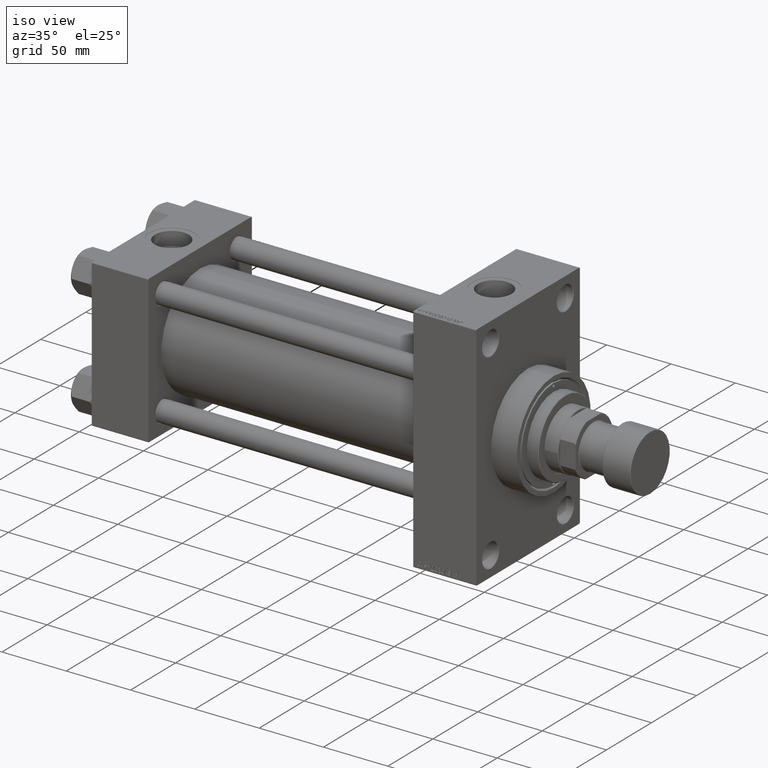
[diagram: clean part render]
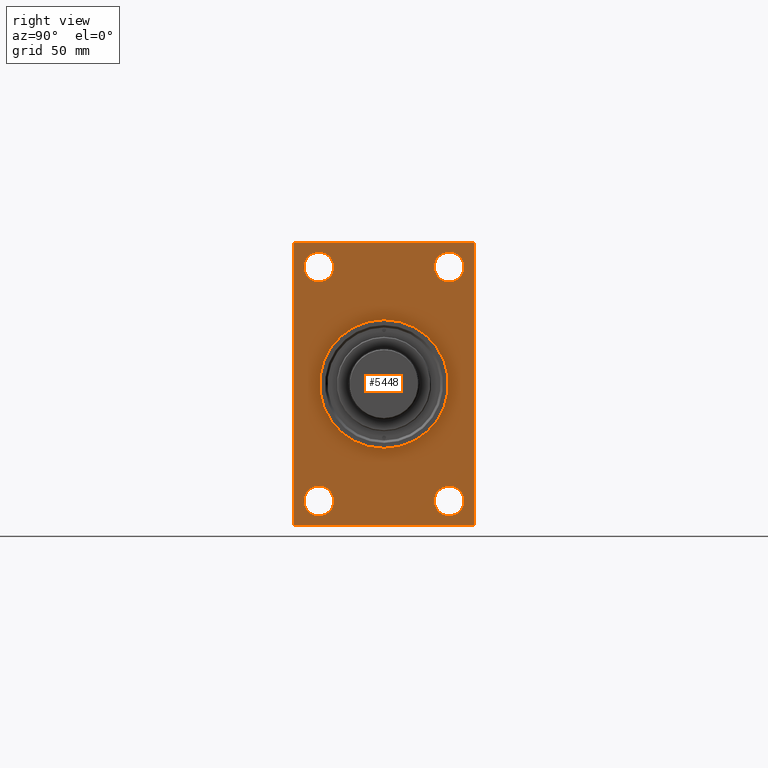
[diagram: tour spotlight — one face highlighted and labeled with its STEP entity id]
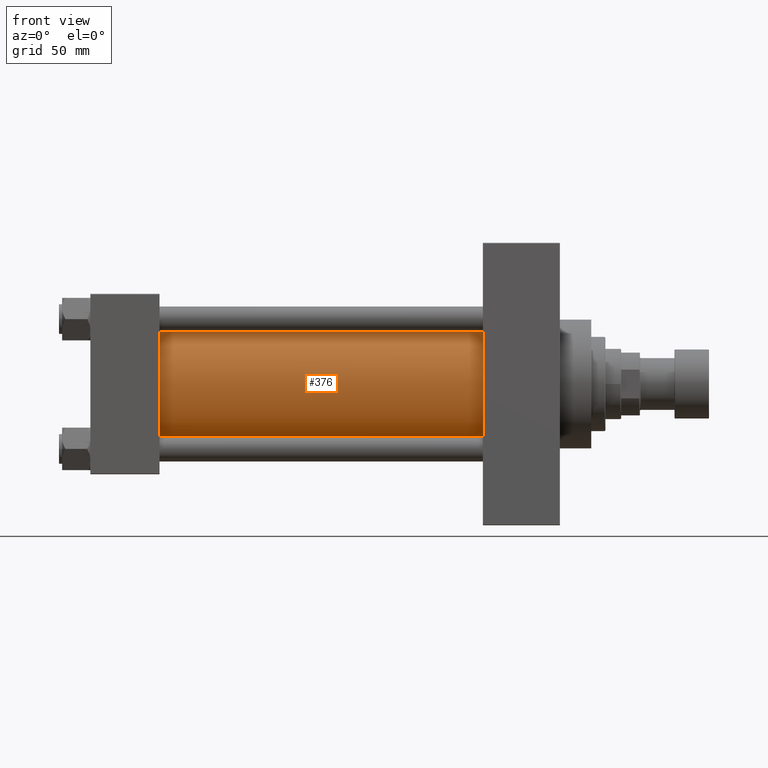
[diagram: tour spotlight — one face highlighted and labeled with its STEP entity id]
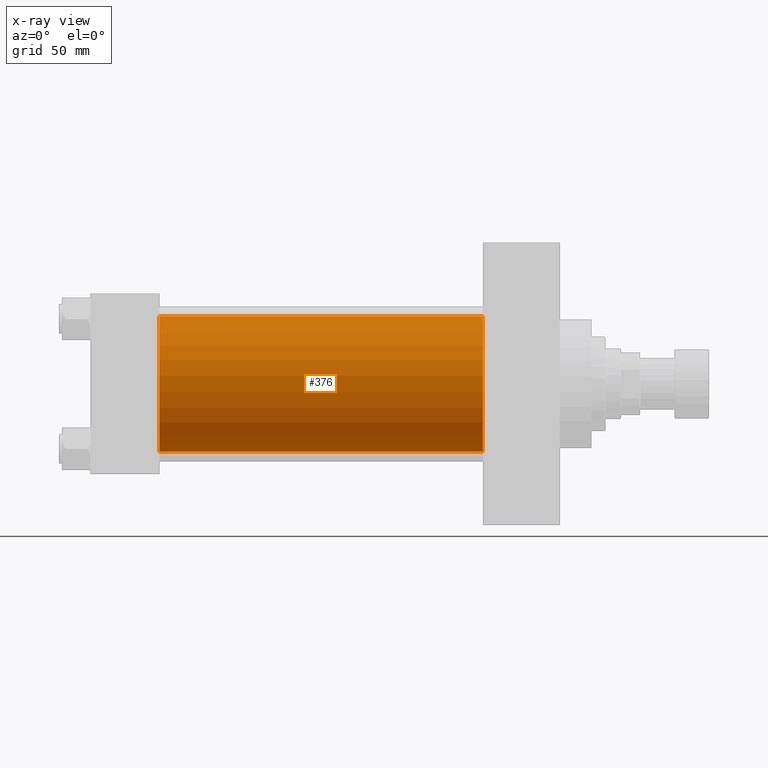
[diagram: x-ray of the same camera — body ghosted, this tour face saturated]
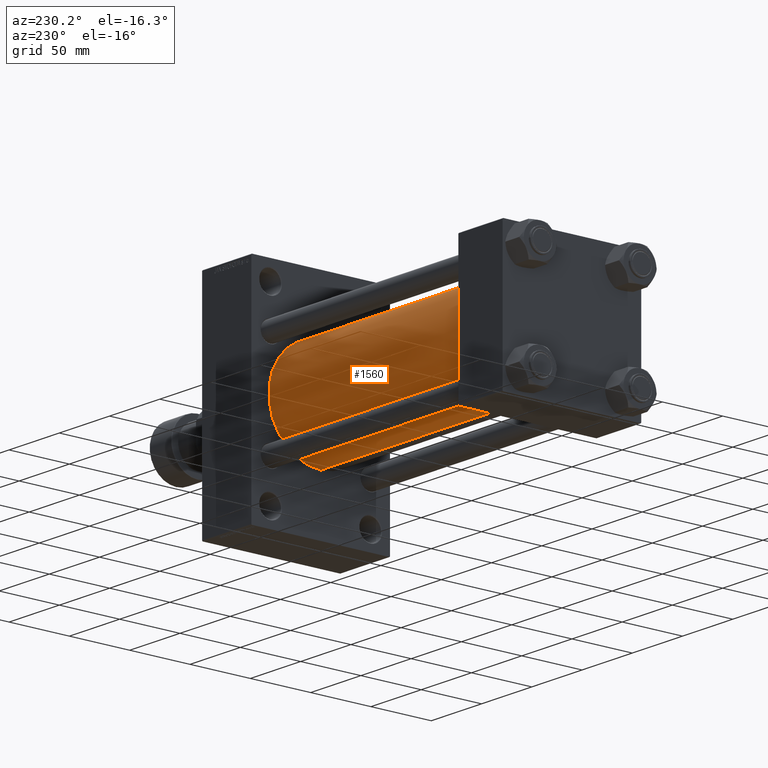
[diagram: tour spotlight — one face highlighted and labeled with its STEP entity id]
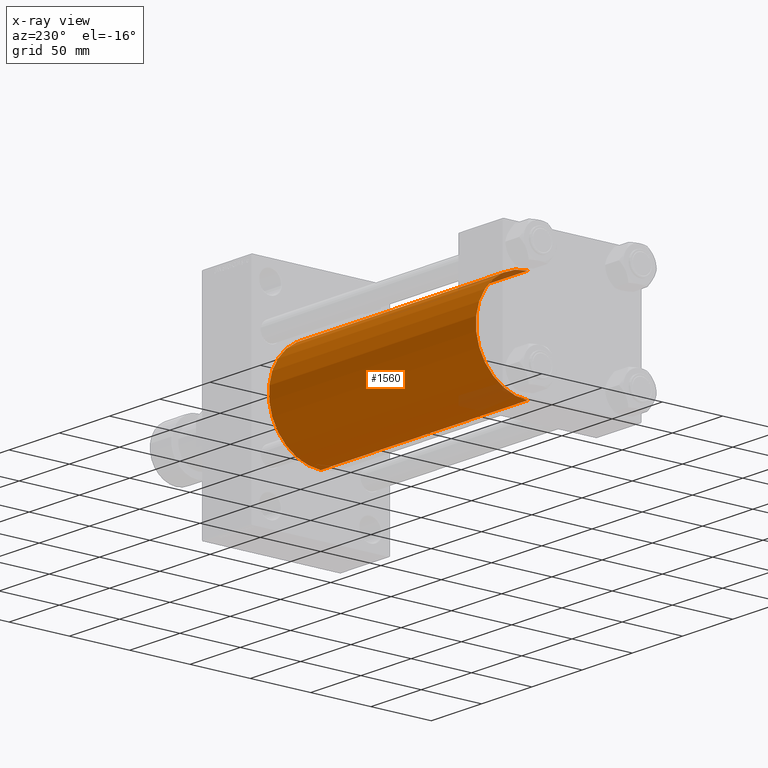
[diagram: x-ray of the same camera — body ghosted, this tour face saturated]
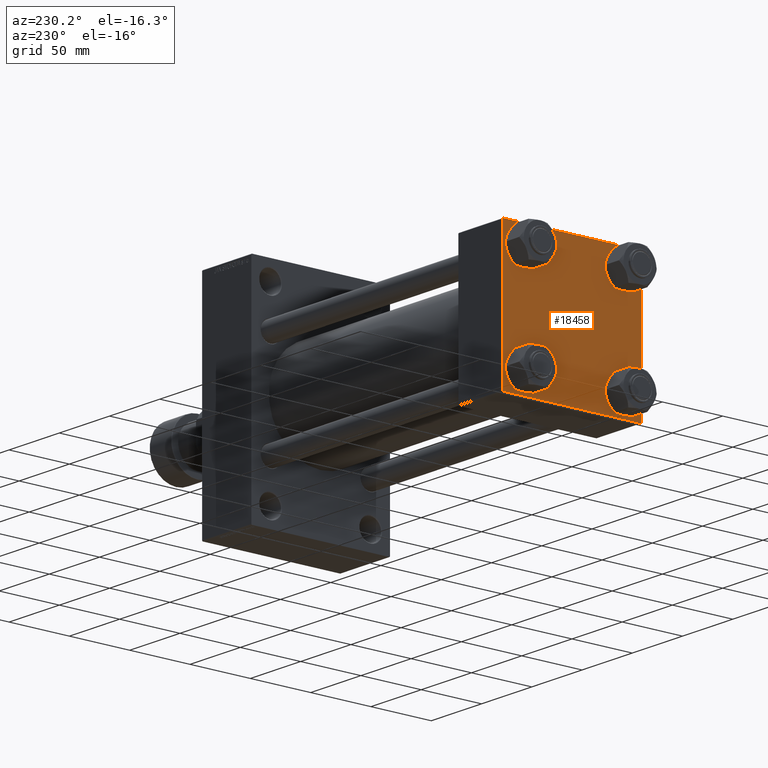
[diagram: tour spotlight — one face highlighted and labeled with its STEP entity id]
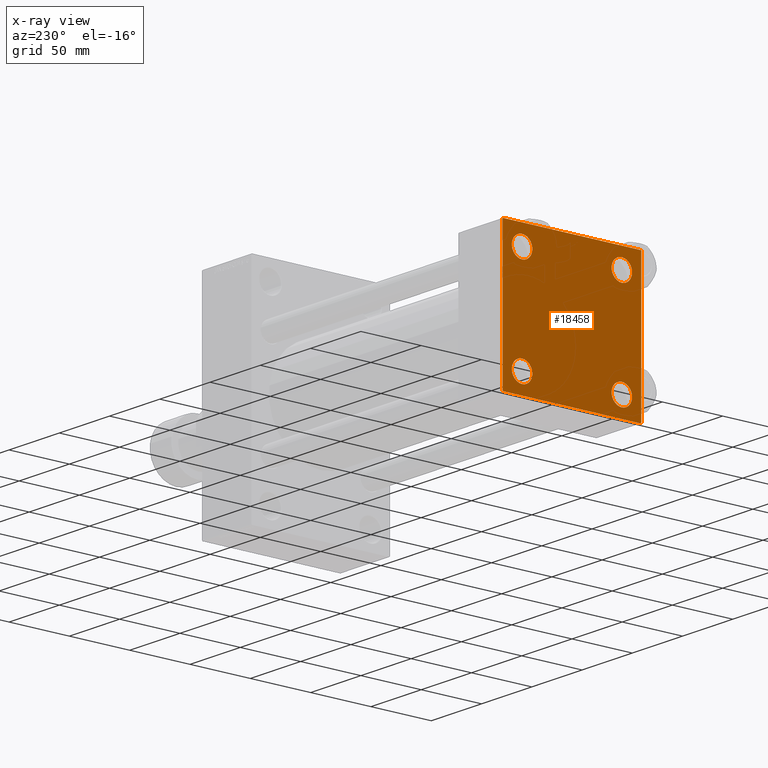
[diagram: x-ray of the same camera — body ghosted, this tour face saturated]
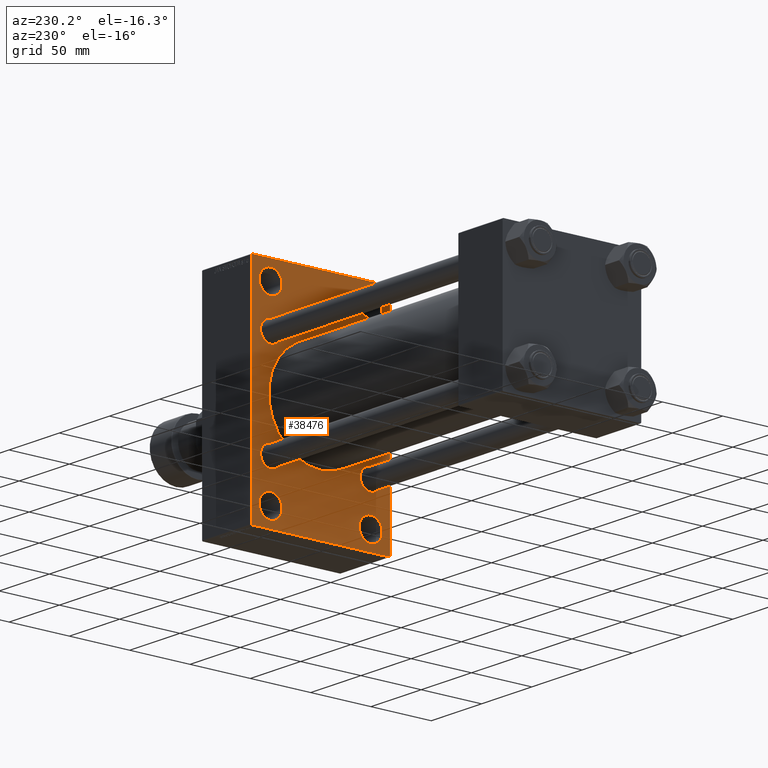
[diagram: tour spotlight — one face highlighted and labeled with its STEP entity id]
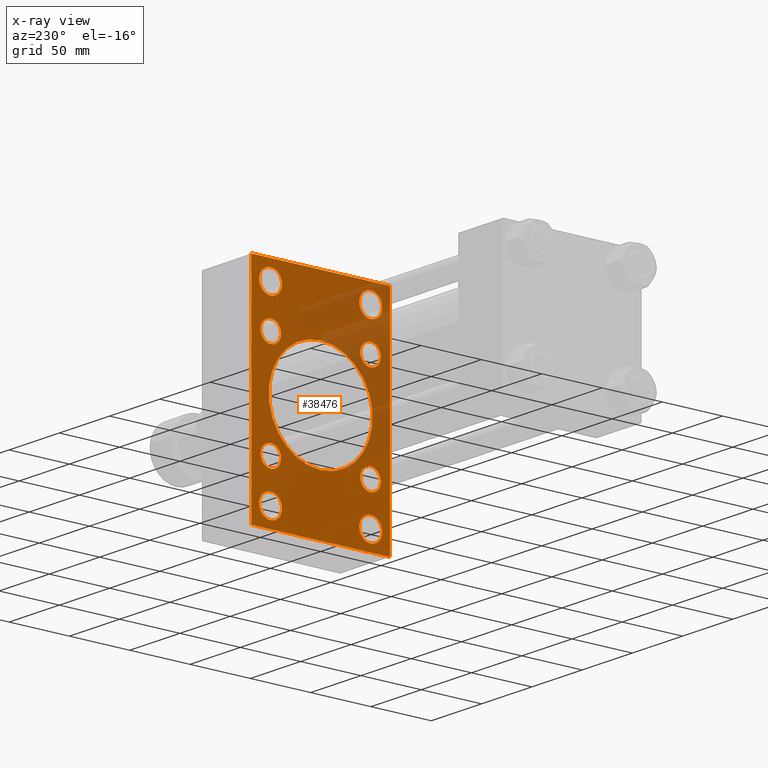
[diagram: x-ray of the same camera — body ghosted, this tour face saturated]
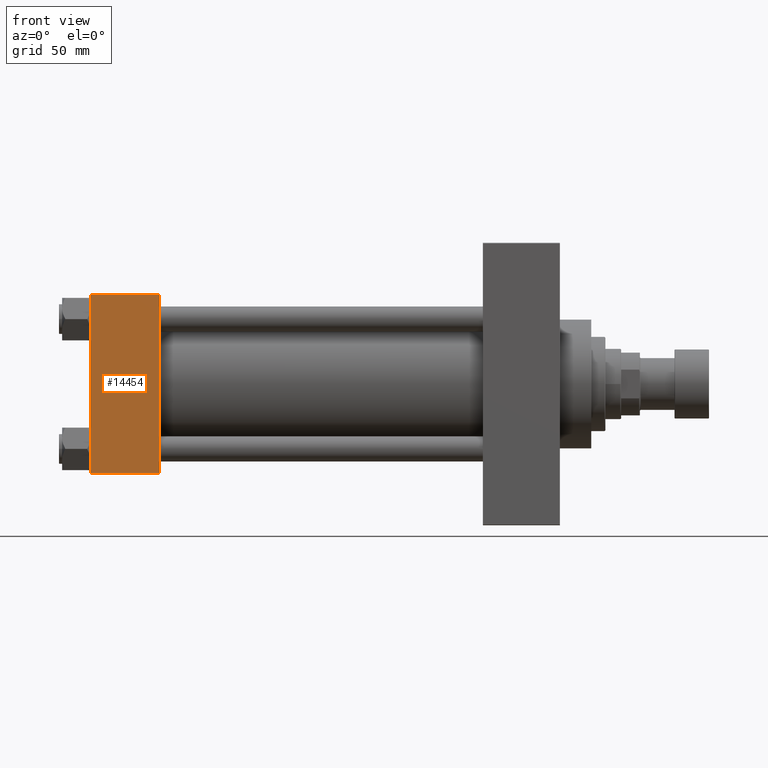
[diagram: tour spotlight — one face highlighted and labeled with its STEP entity id]
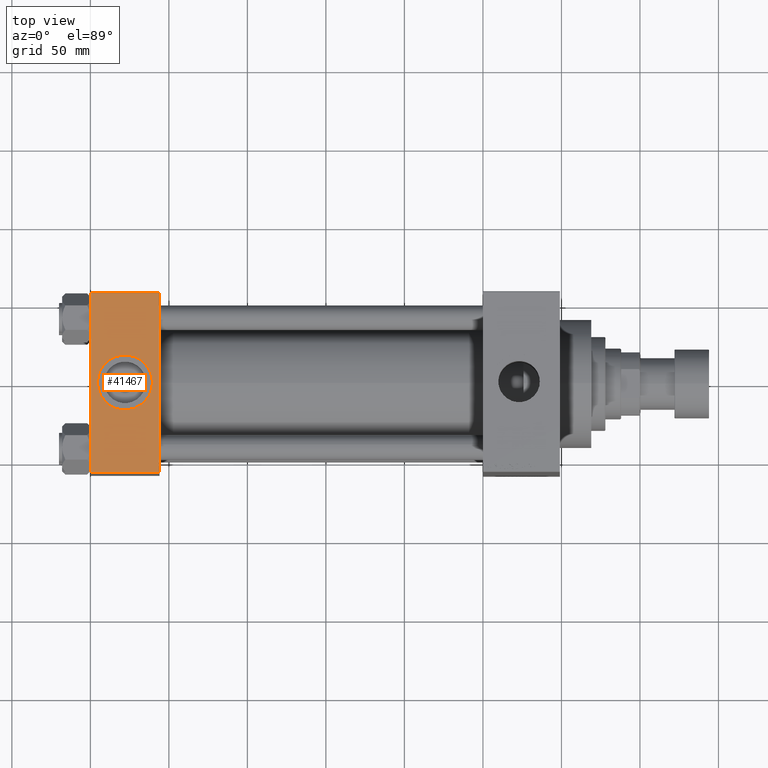
[diagram: tour spotlight — one face highlighted and labeled with its STEP entity id]
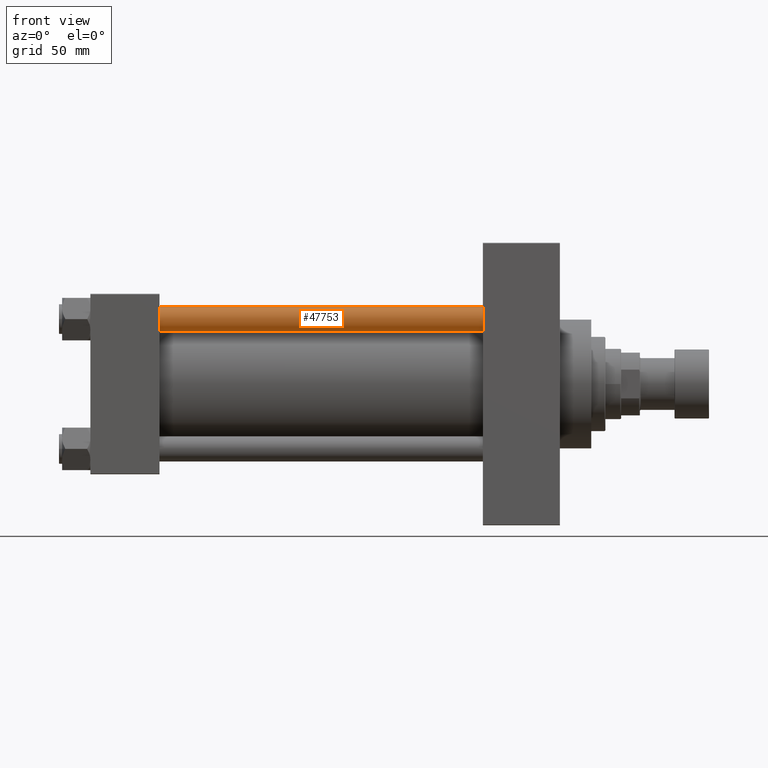
[diagram: tour spotlight — one face highlighted and labeled with its STEP entity id]
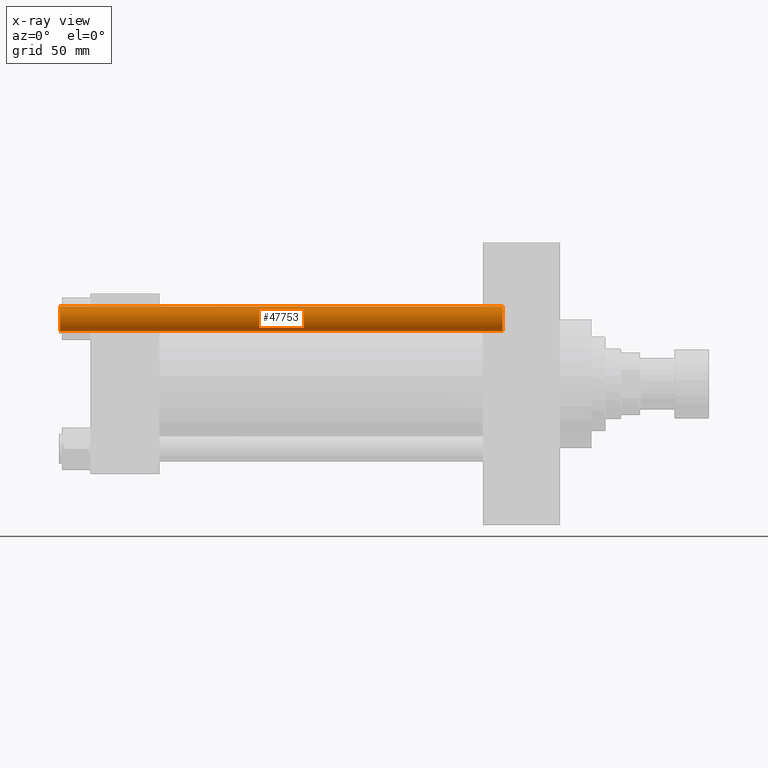
[diagram: x-ray of the same camera — body ghosted, this tour face saturated]
A machine part: a face-by-face anatomy tour. The part has 1172 B-rep faces; the first image is the clean iso view, then the 8 largest visible faces are spotlighted one at a time (largest first), each with its STEP entity span.

Face 1 — right view, entity #5448. In plain terms, the highlighted planar face has unit normal (-1, 0, 0).
Definition (entity closure, byte-faithful):
#339 = EDGE_CURVE ( 'NONE', #33283, #7590, #20821, .T. ) ;
#1016 = VERTEX_POINT ( 'NONE', #17820 ) ;
#1312 = EDGE_LOOP ( 'NONE', ( #44692, #38756 ) ) ;
#1421 = ORIENTED_EDGE ( 'NONE', *, *, #47766, .T. ) ;
#1529 = EDGE_LOOP ( 'NONE', ( #36969, #35162 ) ) ;
#1688 = EDGE_CURVE ( 'NONE', #29775, #31884, #44260, .T. ) ;
#1736 = AXIS2_PLACEMENT_3D ( 'NONE', #9801, #44870, #39337 ) ;
#1923 = EDGE_CURVE ( 'NONE', #35172, #1016, #47387, .T. ) ;
#2279 = EDGE_LOOP ( 'NONE', ( #10508, #33215, #32912, #38715, #40127, #41897, #34661, #17486 ) ) ;
#2812 = FACE_BOUND ( 'NONE', #32144, .T. ) ;
#3116 = EDGE_CURVE ( 'NONE', #25927, #44232, #14776, .T. ) ;
#3554 = CARTESIAN_POINT ( 'NONE',  ( 299.0000000000000000, 41.50000000000000711, 84.00000000000001421 ) ) ;
#3778 = CIRCLE ( 'NONE', #21750, 9.499999999999953815 ) ;
#4065 = LINE ( 'NONE', #26057, #29401 ) ;
#4528 = CIRCLE ( 'NONE', #45876, 9.500000000000008882 ) ;
#5058 = EDGE_CURVE ( 'NONE', #44232, #25927, #18917, .T. ) ;
#5193 = CARTESIAN_POINT ( 'NONE',  ( 299.0000000000000000, 41.50000000000000711, -74.50000000000000000 ) ) ;
#5448 = ADVANCED_FACE ( 'NONE', ( #10401, #22363, #2812, #40176, #21644, #6484 ), #14539, .F. ) ;
#6484 = FACE_OUTER_BOUND ( 'NONE', #2279, .T. ) ;
#6759 = CARTESIAN_POINT ( 'NONE',  ( 299.0000000000000000, 41.50000000000000711, -74.50000000000000000 ) ) ;
#6853 = CIRCLE ( 'NONE', #18573, 9.500000000000008882 ) ;
#7092 = DIRECTION ( 'NONE',  ( 0.000000000000000000, 0.000000000000000000, -1.000000000000000000 ) ) ;
#7318 = DIRECTION ( 'NONE',  ( 0.000000000000000000, 0.000000000000000000, 1.000000000000000000 ) ) ;
#7349 = CARTESIAN_POINT ( 'NONE',  ( 299.0000000000000000, -41.49999999999999289, 74.50000000000001421 ) ) ;
#7382 = DIRECTION ( 'NONE',  ( 0.000000000000000000, -1.000000000000000000, -1.206764157201257045E-16 ) ) ;
#7581 = CARTESIAN_POINT ( 'NONE',  ( 299.0000000000000000, 0.000000000000000000, 41.00000000000000000 ) ) ;
#7590 = VERTEX_POINT ( 'NONE', #29690 ) ;
#8075 = DIRECTION ( 'NONE',  ( 0.000000000000000000, 0.7071067811865573427, -0.7071067811865378028 ) ) ;
#8803 = DIRECTION ( 'NONE',  ( -0.000000000000000000, 0.7071067811865574537, 0.7071067811865376918 ) ) ;
#9200 = VECTOR ( 'NONE', #19032, 1000.000000000000000 ) ;
#9801 = CARTESIAN_POINT ( 'NONE',  ( 299.0000000000000000, 0.000000000000000000, 0.000000000000000000 ) ) ;
#9940 = CARTESIAN_POINT ( 'NONE',  ( 299.0000000000000000, -41.49999999999999289, -83.99999999999992895 ) ) ;
#10184 = VERTEX_POINT ( 'NONE', #18886 ) ;
#10401 = FACE_BOUND ( 'NONE', #1312, .T. ) ;
#10508 = ORIENTED_EDGE ( 'NONE', *, *, #1923, .T. ) ;
#10972 = VERTEX_POINT ( 'NONE', #3554 ) ;
#11347 = CARTESIAN_POINT ( 'NONE',  ( 299.0000000000000000, 41.50000000000000711, -84.00000000000000000 ) ) ;
#11482 = DIRECTION ( 'NONE',  ( 0.000000000000000000, 0.000000000000000000, 1.000000000000000000 ) ) ;
#11697 = ORIENTED_EDGE ( 'NONE', *, *, #46202, .T. ) ;
#12150 = VERTEX_POINT ( 'NONE', #48346 ) ;
#12478 = VECTOR ( 'NONE', #8075, 1000.000000000000000 ) ;
#12847 = EDGE_CURVE ( 'NONE', #38702, #12150, #37649, .T. ) ;
#12995 = ORIENTED_EDGE ( 'NONE', *, *, #339, .T. ) ;
#14345 = CARTESIAN_POINT ( 'NONE',  ( 299.0000000000000000, 0.000000000000000000, 0.000000000000000000 ) ) ;
#14383 = VERTEX_POINT ( 'NONE', #32761 ) ;
#14426 = VERTEX_POINT ( 'NONE', #14652 ) ;
#14539 = PLANE ( 'NONE',  #27500 ) ;
#14652 = CARTESIAN_POINT ( 'NONE',  ( 299.0000000000000000, 57.49999999999997868, -89.49999999999990052 ) ) ;
#14776 = CIRCLE ( 'NONE', #15544, 41.00000000000000000 ) ;
#15412 = CARTESIAN_POINT ( 'NONE',  ( 299.0000000000000000, -41.49999999999999289, 84.00000000000001421 ) ) ;
#15544 = AXIS2_PLACEMENT_3D ( 'NONE', #14345, #43654, #44386 ) ;
#15610 = ORIENTED_EDGE ( 'NONE', *, *, #22661, .T. ) ;
#15728 = DIRECTION ( 'NONE',  ( -1.000000000000000000, 0.000000000000000000, -0.000000000000000000 ) ) ;
#16101 = AXIS2_PLACEMENT_3D ( 'NONE', #36870, #44672, #7318 ) ;
#17216 = CARTESIAN_POINT ( 'NONE',  ( 299.0000000000000000, -41.49999999999999289, -74.49999999999998579 ) ) ;
#17486 = ORIENTED_EDGE ( 'NONE', *, *, #40236, .T. ) ;
#17675 = CIRCLE ( 'NONE', #16101, 9.500000000000008882 ) ;
#17772 = EDGE_CURVE ( 'NONE', #10972, #29039, #17675, .T. ) ;
#17820 = CARTESIAN_POINT ( 'NONE',  ( 299.0000000000000000, -57.50000000000002132, -89.49999999999997158 ) ) ;
#18116 = CARTESIAN_POINT ( 'NONE',  ( 299.0000000000000000, 57.49999999999997158, 89.49999999999992895 ) ) ;
#18348 = DIRECTION ( 'NONE',  ( 0.000000000000000000, 0.000000000000000000, 1.000000000000000000 ) ) ;
#18573 = AXIS2_PLACEMENT_3D ( 'NONE', #5193, #15728, #45508 ) ;
#18886 = CARTESIAN_POINT ( 'NONE',  ( 299.0000000000000000, -41.49999999999999289, 65.00000000000000000 ) ) ;
#18917 = CIRCLE ( 'NONE', #1736, 41.00000000000000000 ) ;
#18990 = EDGE_CURVE ( 'NONE', #29775, #14426, #23223, .T. ) ;
#19032 = DIRECTION ( 'NONE',  ( 0.000000000000000000, -1.000000000000000000, -1.206764157201257291E-16 ) ) ;
#19054 = DIRECTION ( 'NONE',  ( -1.000000000000000000, 0.000000000000000000, -0.000000000000000000 ) ) ;
#19536 = CARTESIAN_POINT ( 'NONE',  ( 299.0000000000000000, -57.50000000000002132, 89.49999999999991473 ) ) ;
#19546 = CARTESIAN_POINT ( 'NONE',  ( 299.0000000000000000, -41.49999999999999289, -74.49999999999998579 ) ) ;
#20059 = VECTOR ( 'NONE', #7092, 1000.000000000000000 ) ;
#20507 = CARTESIAN_POINT ( 'NONE',  ( 299.0000000000000000, 56.99999999999992895, -90.00000000000000000 ) ) ;
#20630 = LINE ( 'NONE', #35536, #32487 ) ;
#20686 = DIRECTION ( 'NONE',  ( -1.000000000000000000, 0.000000000000000000, -0.000000000000000000 ) ) ;
#20713 = VECTOR ( 'NONE', #25951, 1000.000000000000114 ) ;
#20821 = CIRCLE ( 'NONE', #28619, 9.499999999999953815 ) ;
#21353 = DIRECTION ( 'NONE',  ( 0.000000000000000000, 3.854941057726238467E-17, -1.000000000000000000 ) ) ;
#21357 = DIRECTION ( 'NONE',  ( -1.000000000000000000, 0.000000000000000000, -0.000000000000000000 ) ) ;
#21644 = FACE_BOUND ( 'NONE', #43976, .T. ) ;
#21699 = EDGE_CURVE ( 'NONE', #29039, #10972, #44273, .T. ) ;
#21750 = AXIS2_PLACEMENT_3D ( 'NONE', #19546, #19054, #11482 ) ;
#22050 = CARTESIAN_POINT ( 'NONE',  ( 299.0000000000000000, 57.49999999999997868, -90.00000000000000000 ) ) ;
#22142 = ORIENTED_EDGE ( 'NONE', *, *, #3116, .F. ) ;
#22363 = FACE_BOUND ( 'NONE', #22492, .T. ) ;
#22444 = VERTEX_POINT ( 'NONE', #15412 ) ;
#22492 = EDGE_LOOP ( 'NONE', ( #12995, #1421 ) ) ;
#22661 = EDGE_CURVE ( 'NONE', #14383, #32786, #4528, .T. ) ;
#23223 = LINE ( 'NONE', #45434, #33318 ) ;
#23963 = CARTESIAN_POINT ( 'NONE',  ( 299.0000000000000000, -57.00000000000002132, -90.00000000000001421 ) ) ;
#25059 = DIRECTION ( 'NONE',  ( -0.000000000000000000, 0.000000000000000000, 1.000000000000000000 ) ) ;
#25253 = CARTESIAN_POINT ( 'NONE',  ( 299.0000000000000000, -41.49999999999999289, 74.50000000000001421 ) ) ;
#25793 = CARTESIAN_POINT ( 'NONE',  ( 299.0000000000000000, 0.000000000000000000, 0.000000000000000000 ) ) ;
#25927 = VERTEX_POINT ( 'NONE', #7581 ) ;
#25951 = DIRECTION ( 'NONE',  ( 0.000000000000000000, -0.7071067811865474617, 0.7071067811865474617 ) ) ;
#26050 = DIRECTION ( 'NONE',  ( -1.000000000000000000, 0.000000000000000000, -0.000000000000000000 ) ) ;
#26057 = CARTESIAN_POINT ( 'NONE',  ( 299.0000000000000000, -57.50000000000002132, 89.49999999999991473 ) ) ;
#26162 = ORIENTED_EDGE ( 'NONE', *, *, #5058, .F. ) ;
#26621 = LINE ( 'NONE', #44435, #9200 ) ;
#27054 = EDGE_CURVE ( 'NONE', #1016, #31884, #44940, .T. ) ;
#27500 = AXIS2_PLACEMENT_3D ( 'NONE', #25793, #29710, #25059 ) ;
#28619 = AXIS2_PLACEMENT_3D ( 'NONE', #17216, #21357, #31893 ) ;
#29039 = VERTEX_POINT ( 'NONE', #37018 ) ;
#29081 = CARTESIAN_POINT ( 'NONE',  ( 299.0000000000000000, -57.50000000000002132, 89.99999999999997158 ) ) ;
#29401 = VECTOR ( 'NONE', #34368, 1000.000000000000000 ) ;
#29690 = CARTESIAN_POINT ( 'NONE',  ( 299.0000000000000000, -41.49999999999999289, -65.00000000000002842 ) ) ;
#29710 = DIRECTION ( 'NONE',  ( -1.000000000000000000, 0.000000000000000000, -0.000000000000000000 ) ) ;
#29775 = VERTEX_POINT ( 'NONE', #20507 ) ;
#31228 = CARTESIAN_POINT ( 'NONE',  ( 299.0000000000000000, 41.50000000000000711, 74.50000000000001421 ) ) ;
#31316 = VERTEX_POINT ( 'NONE', #40753 ) ;
#31884 = VERTEX_POINT ( 'NONE', #23963 ) ;
#31893 = DIRECTION ( 'NONE',  ( 0.000000000000000000, 0.000000000000000000, 1.000000000000000000 ) ) ;
#32144 = EDGE_LOOP ( 'NONE', ( #11697, #15610 ) ) ;
#32487 = VECTOR ( 'NONE', #21353, 1000.000000000000000 ) ;
#32761 = CARTESIAN_POINT ( 'NONE',  ( 299.0000000000000000, 41.50000000000000711, -64.99999999999998579 ) ) ;
#32786 = VERTEX_POINT ( 'NONE', #11347 ) ;
#32912 = ORIENTED_EDGE ( 'NONE', *, *, #1688, .F. ) ;
#33215 = ORIENTED_EDGE ( 'NONE', *, *, #27054, .T. ) ;
#33283 = VERTEX_POINT ( 'NONE', #9940 ) ;
#33318 = VECTOR ( 'NONE', #8803, 999.9999999999998863 ) ;
#33325 = DIRECTION ( 'NONE',  ( 0.000000000000000000, 0.000000000000000000, 1.000000000000000000 ) ) ;
#34123 = VECTOR ( 'NONE', #7382, 1000.000000000000000 ) ;
#34368 = DIRECTION ( 'NONE',  ( -0.000000000000000000, -0.7071067811865131558, -0.7071067811865818786 ) ) ;
#34661 = ORIENTED_EDGE ( 'NONE', *, *, #42087, .T. ) ;
#34785 = CIRCLE ( 'NONE', #39433, 9.500000000000008882 ) ;
#35162 = ORIENTED_EDGE ( 'NONE', *, *, #17772, .T. ) ;
#35172 = VERTEX_POINT ( 'NONE', #19536 ) ;
#35536 = CARTESIAN_POINT ( 'NONE',  ( 299.0000000000000000, 57.49999999999997158, 89.99999999999998579 ) ) ;
#36446 = CIRCLE ( 'NONE', #43436, 9.500000000000008882 ) ;
#36870 = CARTESIAN_POINT ( 'NONE',  ( 299.0000000000000000, 41.50000000000000711, 74.50000000000001421 ) ) ;
#36969 = ORIENTED_EDGE ( 'NONE', *, *, #21699, .T. ) ;
#37018 = CARTESIAN_POINT ( 'NONE',  ( 299.0000000000000000, 41.50000000000000711, 65.00000000000000000 ) ) ;
#37622 = EDGE_CURVE ( 'NONE', #22444, #10184, #34785, .T. ) ;
#37649 = LINE ( 'NONE', #41062, #20713 ) ;
#38702 = VERTEX_POINT ( 'NONE', #18116 ) ;
#38715 = ORIENTED_EDGE ( 'NONE', *, *, #18990, .T. ) ;
#38756 = ORIENTED_EDGE ( 'NONE', *, *, #37622, .T. ) ;
#39337 = DIRECTION ( 'NONE',  ( 0.000000000000000000, 0.000000000000000000, -1.000000000000000000 ) ) ;
#39353 = EDGE_CURVE ( 'NONE', #38702, #14426, #20630, .T. ) ;
#39433 = AXIS2_PLACEMENT_3D ( 'NONE', #7349, #44700, #18348 ) ;
#40127 = ORIENTED_EDGE ( 'NONE', *, *, #39353, .F. ) ;
#40131 = DIRECTION ( 'NONE',  ( -1.000000000000000000, 0.000000000000000000, -0.000000000000000000 ) ) ;
#40176 = FACE_BOUND ( 'NONE', #1529, .T. ) ;
#40236 = EDGE_CURVE ( 'NONE', #31316, #35172, #4065, .T. ) ;
#40753 = CARTESIAN_POINT ( 'NONE',  ( 299.0000000000000000, -57.00000000000001421, 89.99999999999997158 ) ) ;
#40924 = DIRECTION ( 'NONE',  ( 0.000000000000000000, 0.000000000000000000, 1.000000000000000000 ) ) ;
#41062 = CARTESIAN_POINT ( 'NONE',  ( 299.0000000000000000, 56.99999999999992184, 89.99999999999998579 ) ) ;
#41079 = EDGE_CURVE ( 'NONE', #10184, #22444, #36446, .T. ) ;
#41154 = AXIS2_PLACEMENT_3D ( 'NONE', #31228, #20686, #43373 ) ;
#41897 = ORIENTED_EDGE ( 'NONE', *, *, #12847, .T. ) ;
#42087 = EDGE_CURVE ( 'NONE', #12150, #31316, #26621, .T. ) ;
#43373 = DIRECTION ( 'NONE',  ( 0.000000000000000000, 0.000000000000000000, 1.000000000000000000 ) ) ;
#43436 = AXIS2_PLACEMENT_3D ( 'NONE', #25253, #40131, #33325 ) ;
#43654 = DIRECTION ( 'NONE',  ( 1.000000000000000000, 0.000000000000000000, 0.000000000000000000 ) ) ;
#43976 = EDGE_LOOP ( 'NONE', ( #22142, #26162 ) ) ;
#44232 = VERTEX_POINT ( 'NONE', #47337 ) ;
#44260 = LINE ( 'NONE', #22050, #34123 ) ;
#44273 = CIRCLE ( 'NONE', #41154, 9.500000000000008882 ) ;
#44386 = DIRECTION ( 'NONE',  ( 0.000000000000000000, 0.000000000000000000, -1.000000000000000000 ) ) ;
#44435 = CARTESIAN_POINT ( 'NONE',  ( 299.0000000000000000, 57.49999999999997158, 89.99999999999998579 ) ) ;
#44672 = DIRECTION ( 'NONE',  ( -1.000000000000000000, 0.000000000000000000, -0.000000000000000000 ) ) ;
#44692 = ORIENTED_EDGE ( 'NONE', *, *, #41079, .T. ) ;
#44700 = DIRECTION ( 'NONE',  ( -1.000000000000000000, 0.000000000000000000, -0.000000000000000000 ) ) ;
#44870 = DIRECTION ( 'NONE',  ( 1.000000000000000000, 0.000000000000000000, 0.000000000000000000 ) ) ;
#44940 = LINE ( 'NONE', #45427, #12478 ) ;
#45427 = CARTESIAN_POINT ( 'NONE',  ( 299.0000000000000000, -57.00000000000002132, -90.00000000000001421 ) ) ;
#45434 = CARTESIAN_POINT ( 'NONE',  ( 299.0000000000000000, 57.49999999999997868, -89.49999999999995737 ) ) ;
#45508 = DIRECTION ( 'NONE',  ( 0.000000000000000000, 0.000000000000000000, 1.000000000000000000 ) ) ;
#45876 = AXIS2_PLACEMENT_3D ( 'NONE', #6759, #26050, #40924 ) ;
#46202 = EDGE_CURVE ( 'NONE', #32786, #14383, #6853, .T. ) ;
#47337 = CARTESIAN_POINT ( 'NONE',  ( 299.0000000000000000, 5.021051876504148963E-15, -41.00000000000000000 ) ) ;
#47387 = LINE ( 'NONE', #29081, #20059 ) ;
#47766 = EDGE_CURVE ( 'NONE', #7590, #33283, #3778, .T. ) ;
#48346 = CARTESIAN_POINT ( 'NONE',  ( 299.0000000000000000, 56.99999999999992184, 89.99999999999998579 ) ) ;

Face 2 — front view, entity #376. An x-ray twin of the same camera follows (body ghosted, this face saturated) — the face is partly hidden behind the body. In plain terms, the highlighted cylindrical surface (partial cylindrical patch) has radius 43 mm, axis along (-1, -0, -0).
Definition (entity closure, byte-faithful):
#376 = ADVANCED_FACE ( 'NONE', ( #14506 ), #10369, .T. ) ;
#670 = DIRECTION ( 'NONE',  ( 0.000000000000000000, 0.000000000000000000, 1.000000000000000000 ) ) ;
#2212 = CIRCLE ( 'NONE', #3792, 43.00000000000000000 ) ;
#3136 = EDGE_CURVE ( 'NONE', #10790, #23596, #18264, .T. ) ;
#3326 = ORIENTED_EDGE ( 'NONE', *, *, #4350, .T. ) ;
#3792 = AXIS2_PLACEMENT_3D ( 'NONE', #36252, #17700, #30652 ) ;
#4100 = CARTESIAN_POINT ( 'NONE',  ( 43.99999999999998579, -2.602085213965210642E-15, 0.000000000000000000 ) ) ;
#4350 = EDGE_CURVE ( 'NONE', #14792, #38341, #37721, .T. ) ;
#5056 = ORIENTED_EDGE ( 'NONE', *, *, #10601, .T. ) ;
#6259 = CARTESIAN_POINT ( 'NONE',  ( 250.0000000000000000, 2.663896022368408223E-15, -43.00000000000000000 ) ) ;
#7267 = DIRECTION ( 'NONE',  ( -1.000000000000000000, -0.000000000000000000, -0.000000000000000000 ) ) ;
#7344 = EDGE_LOOP ( 'NONE', ( #43972, #42584, #3326, #5056 ) ) ;
#8176 = AXIS2_PLACEMENT_3D ( 'NONE', #4100, #14861, #670 ) ;
#10106 = VECTOR ( 'NONE', #7267, 1000.000000000000000 ) ;
#10369 = CYLINDRICAL_SURFACE ( 'NONE', #21594, 43.00000000000000000 ) ;
#10601 = EDGE_CURVE ( 'NONE', #38341, #23596, #13630, .T. ) ;
#10790 = VERTEX_POINT ( 'NONE', #6259 ) ;
#13630 = CIRCLE ( 'NONE', #8176, 43.00000000000000000 ) ;
#14506 = FACE_OUTER_BOUND ( 'NONE', #7344, .T. ) ;
#14792 = VERTEX_POINT ( 'NONE', #22659 ) ;
#14861 = DIRECTION ( 'NONE',  ( 1.000000000000000000, -0.000000000000000000, 0.000000000000000000 ) ) ;
#15262 = CARTESIAN_POINT ( 'NONE',  ( 250.0000000000000000, -2.602085213965210642E-15, 43.00000000000000000 ) ) ;
#17700 = DIRECTION ( 'NONE',  ( 1.000000000000000000, 0.000000000000000000, 0.000000000000000000 ) ) ;
#18264 = LINE ( 'NONE', #40712, #10106 ) ;
#21009 = CARTESIAN_POINT ( 'NONE',  ( 43.99999999999998579, 2.663896022368408223E-15, -43.00000000000000000 ) ) ;
#21112 = CARTESIAN_POINT ( 'NONE',  ( 43.99999999999998579, -2.602085213965210642E-15, 43.00000000000000000 ) ) ;
#21594 = AXIS2_PLACEMENT_3D ( 'NONE', #25265, #33337, #44306 ) ;
#22659 = CARTESIAN_POINT ( 'NONE',  ( 250.0000000000000000, -2.602085213965210642E-15, 43.00000000000000000 ) ) ;
#23079 = EDGE_CURVE ( 'NONE', #14792, #10790, #2212, .T. ) ;
#23596 = VERTEX_POINT ( 'NONE', #21009 ) ;
#25265 = CARTESIAN_POINT ( 'NONE',  ( 250.0000000000000000, -2.602085213965210642E-15, 0.000000000000000000 ) ) ;
#30652 = DIRECTION ( 'NONE',  ( 0.000000000000000000, 0.000000000000000000, -1.000000000000000000 ) ) ;
#31221 = VECTOR ( 'NONE', #44804, 1000.000000000000000 ) ;
#33337 = DIRECTION ( 'NONE',  ( -1.000000000000000000, -0.000000000000000000, -0.000000000000000000 ) ) ;
#36252 = CARTESIAN_POINT ( 'NONE',  ( 250.0000000000000000, -2.602085213965210642E-15, 0.000000000000000000 ) ) ;
#37721 = LINE ( 'NONE', #15262, #31221 ) ;
#38341 = VERTEX_POINT ( 'NONE', #21112 ) ;
#40712 = CARTESIAN_POINT ( 'NONE',  ( 250.0000000000000000, 2.663896022368408223E-15, -43.00000000000000000 ) ) ;
#42584 = ORIENTED_EDGE ( 'NONE', *, *, #23079, .F. ) ;
#43972 = ORIENTED_EDGE ( 'NONE', *, *, #3136, .F. ) ;
#44306 = DIRECTION ( 'NONE',  ( 0.000000000000000000, 0.000000000000000000, 1.000000000000000000 ) ) ;
#44804 = DIRECTION ( 'NONE',  ( -1.000000000000000000, -0.000000000000000000, -0.000000000000000000 ) ) ;

Face 3 — auxiliary view, entity #1560. An x-ray twin of the same camera follows (body ghosted, this face saturated) — the face is partly hidden behind the body. In plain terms, the highlighted cylindrical surface (partial cylindrical patch) has radius 43 mm, axis along (-1, -0, -0).
Definition (entity closure, byte-faithful):
#1560 = ADVANCED_FACE ( 'NONE', ( #6170 ), #47448, .T. ) ;
#1873 = ORIENTED_EDGE ( 'NONE', *, *, #6608, .T. ) ;
#3136 = EDGE_CURVE ( 'NONE', #10790, #23596, #18264, .T. ) ;
#4350 = EDGE_CURVE ( 'NONE', #14792, #38341, #37721, .T. ) ;
#6170 = FACE_OUTER_BOUND ( 'NONE', #46268, .T. ) ;
#6259 = CARTESIAN_POINT ( 'NONE',  ( 250.0000000000000000, 2.663896022368408223E-15, -43.00000000000000000 ) ) ;
#6482 = AXIS2_PLACEMENT_3D ( 'NONE', #34588, #39187, #28230 ) ;
#6608 = EDGE_CURVE ( 'NONE', #23596, #38341, #15099, .T. ) ;
#6634 = EDGE_CURVE ( 'NONE', #10790, #14792, #42387, .T. ) ;
#7267 = DIRECTION ( 'NONE',  ( -1.000000000000000000, -0.000000000000000000, -0.000000000000000000 ) ) ;
#8385 = AXIS2_PLACEMENT_3D ( 'NONE', #9368, #20592, #13979 ) ;
#9368 = CARTESIAN_POINT ( 'NONE',  ( 250.0000000000000000, -2.602085213965210642E-15, 0.000000000000000000 ) ) ;
#10106 = VECTOR ( 'NONE', #7267, 1000.000000000000000 ) ;
#10790 = VERTEX_POINT ( 'NONE', #6259 ) ;
#12934 = ORIENTED_EDGE ( 'NONE', *, *, #3136, .T. ) ;
#13979 = DIRECTION ( 'NONE',  ( 0.000000000000000000, 0.000000000000000000, 1.000000000000000000 ) ) ;
#14792 = VERTEX_POINT ( 'NONE', #22659 ) ;
#15099 = CIRCLE ( 'NONE', #27567, 43.00000000000000000 ) ;
#15262 = CARTESIAN_POINT ( 'NONE',  ( 250.0000000000000000, -2.602085213965210642E-15, 43.00000000000000000 ) ) ;
#16976 = DIRECTION ( 'NONE',  ( 1.000000000000000000, -0.000000000000000000, 0.000000000000000000 ) ) ;
#18264 = LINE ( 'NONE', #40712, #10106 ) ;
#20406 = DIRECTION ( 'NONE',  ( 0.000000000000000000, 0.000000000000000000, 1.000000000000000000 ) ) ;
#20592 = DIRECTION ( 'NONE',  ( -1.000000000000000000, -0.000000000000000000, -0.000000000000000000 ) ) ;
#21009 = CARTESIAN_POINT ( 'NONE',  ( 43.99999999999998579, 2.663896022368408223E-15, -43.00000000000000000 ) ) ;
#21112 = CARTESIAN_POINT ( 'NONE',  ( 43.99999999999998579, -2.602085213965210642E-15, 43.00000000000000000 ) ) ;
#22659 = CARTESIAN_POINT ( 'NONE',  ( 250.0000000000000000, -2.602085213965210642E-15, 43.00000000000000000 ) ) ;
#23596 = VERTEX_POINT ( 'NONE', #21009 ) ;
#27567 = AXIS2_PLACEMENT_3D ( 'NONE', #38469, #16976, #20406 ) ;
#28230 = DIRECTION ( 'NONE',  ( 0.000000000000000000, 0.000000000000000000, -1.000000000000000000 ) ) ;
#31221 = VECTOR ( 'NONE', #44804, 1000.000000000000000 ) ;
#34588 = CARTESIAN_POINT ( 'NONE',  ( 250.0000000000000000, -2.602085213965210642E-15, 0.000000000000000000 ) ) ;
#37721 = LINE ( 'NONE', #15262, #31221 ) ;
#38341 = VERTEX_POINT ( 'NONE', #21112 ) ;
#38469 = CARTESIAN_POINT ( 'NONE',  ( 43.99999999999998579, -2.602085213965210642E-15, 0.000000000000000000 ) ) ;
#39187 = DIRECTION ( 'NONE',  ( 1.000000000000000000, 0.000000000000000000, 0.000000000000000000 ) ) ;
#40187 = ORIENTED_EDGE ( 'NONE', *, *, #6634, .F. ) ;
#40712 = CARTESIAN_POINT ( 'NONE',  ( 250.0000000000000000, 2.663896022368408223E-15, -43.00000000000000000 ) ) ;
#42387 = CIRCLE ( 'NONE', #6482, 43.00000000000000000 ) ;
#44804 = DIRECTION ( 'NONE',  ( -1.000000000000000000, -0.000000000000000000, -0.000000000000000000 ) ) ;
#45739 = ORIENTED_EDGE ( 'NONE', *, *, #4350, .F. ) ;
#46268 = EDGE_LOOP ( 'NONE', ( #40187, #12934, #1873, #45739 ) ) ;
#47448 = CYLINDRICAL_SURFACE ( 'NONE', #8385, 43.00000000000000000 ) ;

Face 4 — auxiliary view, entity #18458. An x-ray twin of the same camera follows (body ghosted, this face saturated) — the face is partly hidden behind the body. In plain terms, the highlighted planar face has unit normal (-1, 0, 0).
Definition (entity closure, byte-faithful):
#102 = DIRECTION ( 'NONE',  ( -0.000000000000000000, 0.7071067811865376918, 0.7071067811865573427 ) ) ;
#224 = CARTESIAN_POINT ( 'NONE',  ( 0.000000000000000000, -57.50000000000000711, -57.00000000000000711 ) ) ;
#308 = VERTEX_POINT ( 'NONE', #39665 ) ;
#791 = CIRCLE ( 'NONE', #28922, 8.499999999999992895 ) ;
#1062 = DIRECTION ( 'NONE',  ( 0.000000000000000000, -1.000000000000000000, -1.206764157201257045E-16 ) ) ;
#1579 = CARTESIAN_POINT ( 'NONE',  ( 0.000000000000000000, -57.00000000000003553, 57.49999999999999289 ) ) ;
#2098 = EDGE_LOOP ( 'NONE', ( #42775, #28328 ) ) ;
#2448 = CARTESIAN_POINT ( 'NONE',  ( 0.000000000000000000, 57.00000000000002132, -57.49999999999999289 ) ) ;
#2663 = CARTESIAN_POINT ( 'NONE',  ( 0.000000000000000000, 57.24999999999922551, 57.25000000000081712 ) ) ;
#3573 = VERTEX_POINT ( 'NONE', #2448 ) ;
#3804 = ORIENTED_EDGE ( 'NONE', *, *, #47240, .T. ) ;
#4709 = CARTESIAN_POINT ( 'NONE',  ( 0.000000000000000000, 41.34999999999999432, 32.85000000000000853 ) ) ;
#5517 = CARTESIAN_POINT ( 'NONE',  ( 0.000000000000000000, 41.34999999999999432, -32.85000000000000853 ) ) ;
#5825 = AXIS2_PLACEMENT_3D ( 'NONE', #17359, #17849, #32769 ) ;
#6885 = VERTEX_POINT ( 'NONE', #32020 ) ;
#7345 = EDGE_CURVE ( 'NONE', #26666, #29746, #34606, .T. ) ;
#7526 = EDGE_CURVE ( 'NONE', #34048, #21892, #15736, .T. ) ;
#7594 = ORIENTED_EDGE ( 'NONE', *, *, #20725, .T. ) ;
#7837 = ORIENTED_EDGE ( 'NONE', *, *, #30453, .T. ) ;
#8051 = VERTEX_POINT ( 'NONE', #10445 ) ;
#8272 = VERTEX_POINT ( 'NONE', #5517 ) ;
#8611 = CARTESIAN_POINT ( 'NONE',  ( 0.000000000000000000, 57.49999999999999289, -57.00000000000000711 ) ) ;
#8657 = DIRECTION ( 'NONE',  ( 0.000000000000000000, 0.000000000000000000, 1.000000000000000000 ) ) ;
#9258 = AXIS2_PLACEMENT_3D ( 'NONE', #27464, #45760, #8657 ) ;
#9696 = CARTESIAN_POINT ( 'NONE',  ( 0.000000000000000000, 41.34999999999999432, 41.35000000000000142 ) ) ;
#9935 = DIRECTION ( 'NONE',  ( 0.000000000000000000, 0.000000000000000000, 1.000000000000000000 ) ) ;
#10445 = CARTESIAN_POINT ( 'NONE',  ( 0.000000000000000000, -41.34999999999998721, 32.85000000000001563 ) ) ;
#10555 = VECTOR ( 'NONE', #47884, 1000.000000000000114 ) ;
#10602 = CARTESIAN_POINT ( 'NONE',  ( 0.000000000000000000, -57.00000000000000711, -57.50000000000000711 ) ) ;
#10709 = CIRCLE ( 'NONE', #27110, 8.499999999999992895 ) ;
#10872 = CARTESIAN_POINT ( 'NONE',  ( 0.000000000000000000, -41.34999999999998721, 41.35000000000000853 ) ) ;
#11422 = EDGE_CURVE ( 'NONE', #6885, #18346, #15999, .T. ) ;
#11722 = VECTOR ( 'NONE', #22443, 1000.000000000000114 ) ;
#11829 = EDGE_CURVE ( 'NONE', #308, #15104, #22809, .T. ) ;
#13425 = DIRECTION ( 'NONE',  ( 1.000000000000000000, -0.000000000000000000, 0.000000000000000000 ) ) ;
#13446 = ORIENTED_EDGE ( 'NONE', *, *, #29795, .T. ) ;
#13465 = ORIENTED_EDGE ( 'NONE', *, *, #11829, .T. ) ;
#13526 = AXIS2_PLACEMENT_3D ( 'NONE', #27520, #24087, #46538 ) ;
#14210 = VERTEX_POINT ( 'NONE', #23498 ) ;
#14488 = VERTEX_POINT ( 'NONE', #224 ) ;
#14641 = CIRCLE ( 'NONE', #36497, 8.499999999999992895 ) ;
#14786 = CARTESIAN_POINT ( 'NONE',  ( 0.000000000000000000, 57.49999999999999289, 57.50000000000000711 ) ) ;
#15020 = DIRECTION ( 'NONE',  ( 0.000000000000000000, -1.000000000000000000, -1.206764157201257045E-16 ) ) ;
#15104 = VERTEX_POINT ( 'NONE', #8611 ) ;
#15265 = ORIENTED_EDGE ( 'NONE', *, *, #36837, .T. ) ;
#15339 = AXIS2_PLACEMENT_3D ( 'NONE', #46913, #28370, #35208 ) ;
#15526 = ORIENTED_EDGE ( 'NONE', *, *, #20305, .T. ) ;
#15736 = LINE ( 'NONE', #18685, #44729 ) ;
#15999 = CIRCLE ( 'NONE', #40181, 8.499999999999992895 ) ;
#16904 = EDGE_LOOP ( 'NONE', ( #7837, #17635 ) ) ;
#17067 = LINE ( 'NONE', #31988, #42939 ) ;
#17163 = EDGE_CURVE ( 'NONE', #43701, #8051, #40219, .T. ) ;
#17323 = CARTESIAN_POINT ( 'NONE',  ( 0.000000000000000000, 41.34999999999999432, 49.85000000000000142 ) ) ;
#17356 = FACE_BOUND ( 'NONE', #44108, .T. ) ;
#17359 = CARTESIAN_POINT ( 'NONE',  ( 0.000000000000000000, -41.34999999999998721, -41.35000000000000853 ) ) ;
#17565 = VECTOR ( 'NONE', #34056, 1000.000000000000000 ) ;
#17635 = ORIENTED_EDGE ( 'NONE', *, *, #7345, .T. ) ;
#17849 = DIRECTION ( 'NONE',  ( 1.000000000000000000, -0.000000000000000000, 0.000000000000000000 ) ) ;
#18131 = CARTESIAN_POINT ( 'NONE',  ( 0.000000000000000000, 57.00000000000000711, 57.50000000000000711 ) ) ;
#18339 = CARTESIAN_POINT ( 'NONE',  ( 0.000000000000000000, -57.25000000000000711, -57.25000000000000711 ) ) ;
#18346 = VERTEX_POINT ( 'NONE', #21824 ) ;
#18458 = ADVANCED_FACE ( 'NONE', ( #21027, #24219, #17356, #35925, #28138 ), #39099, .T. ) ;
#18685 = CARTESIAN_POINT ( 'NONE',  ( -0.000000000000000000, -57.25000000000081712, 57.24999999999922551 ) ) ;
#19182 = AXIS2_PLACEMENT_3D ( 'NONE', #44787, #29197, #41377 ) ;
#19468 = VECTOR ( 'NONE', #15020, 1000.000000000000000 ) ;
#20305 = EDGE_CURVE ( 'NONE', #14210, #8272, #10709, .T. ) ;
#20458 = CARTESIAN_POINT ( 'NONE',  ( 0.000000000000000000, 41.34999999999999432, -41.35000000000000142 ) ) ;
#20725 = EDGE_CURVE ( 'NONE', #41626, #308, #25154, .T. ) ;
#20938 = DIRECTION ( 'NONE',  ( 1.000000000000000000, -0.000000000000000000, 0.000000000000000000 ) ) ;
#21027 = FACE_BOUND ( 'NONE', #2098, .T. ) ;
#21418 = EDGE_CURVE ( 'NONE', #8051, #43701, #14641, .T. ) ;
#21511 = EDGE_CURVE ( 'NONE', #3573, #38511, #26507, .T. ) ;
#21746 = DIRECTION ( 'NONE',  ( 0.000000000000000000, 0.7071067811865573427, -0.7071067811865376918 ) ) ;
#21824 = CARTESIAN_POINT ( 'NONE',  ( 0.000000000000000000, -41.34999999999998721, -32.85000000000001563 ) ) ;
#21892 = VERTEX_POINT ( 'NONE', #1579 ) ;
#22237 = CIRCLE ( 'NONE', #5825, 8.499999999999992895 ) ;
#22443 = DIRECTION ( 'NONE',  ( -0.000000000000000000, -0.7071067811865376918, -0.7071067811865573427 ) ) ;
#22809 = LINE ( 'NONE', #37694, #17565 ) ;
#23498 = CARTESIAN_POINT ( 'NONE',  ( 0.000000000000000000, 41.34999999999999432, -49.85000000000000142 ) ) ;
#23697 = ORIENTED_EDGE ( 'NONE', *, *, #7526, .T. ) ;
#24087 = DIRECTION ( 'NONE',  ( 1.000000000000000000, -0.000000000000000000, 0.000000000000000000 ) ) ;
#24219 = FACE_BOUND ( 'NONE', #44479, .T. ) ;
#24657 = DIRECTION ( 'NONE',  ( 0.000000000000000000, 0.000000000000000000, 1.000000000000000000 ) ) ;
#25154 = LINE ( 'NONE', #2663, #44234 ) ;
#25213 = EDGE_CURVE ( 'NONE', #41626, #21892, #33125, .T. ) ;
#25673 = LINE ( 'NONE', #18339, #10555 ) ;
#26507 = LINE ( 'NONE', #34317, #30290 ) ;
#26666 = VERTEX_POINT ( 'NONE', #4709 ) ;
#27110 = AXIS2_PLACEMENT_3D ( 'NONE', #20458, #20938, #47060 ) ;
#27464 = CARTESIAN_POINT ( 'NONE',  ( 0.000000000000000000, 41.34999999999999432, -41.35000000000000142 ) ) ;
#27520 = CARTESIAN_POINT ( 'NONE',  ( 0.000000000000000000, 41.34999999999999432, 41.35000000000000142 ) ) ;
#27952 = EDGE_CURVE ( 'NONE', #34048, #14488, #17067, .T. ) ;
#28138 = FACE_OUTER_BOUND ( 'NONE', #34978, .T. ) ;
#28251 = CARTESIAN_POINT ( 'NONE',  ( 0.000000000000000000, -41.34999999999998721, 49.85000000000000853 ) ) ;
#28328 = ORIENTED_EDGE ( 'NONE', *, *, #21418, .T. ) ;
#28370 = DIRECTION ( 'NONE',  ( -1.000000000000000000, 0.000000000000000000, -0.000000000000000000 ) ) ;
#28922 = AXIS2_PLACEMENT_3D ( 'NONE', #9696, #39475, #9935 ) ;
#29197 = DIRECTION ( 'NONE',  ( 1.000000000000000000, -0.000000000000000000, 0.000000000000000000 ) ) ;
#29746 = VERTEX_POINT ( 'NONE', #17323 ) ;
#29795 = EDGE_CURVE ( 'NONE', #15104, #3573, #40739, .T. ) ;
#30290 = VECTOR ( 'NONE', #1062, 1000.000000000000000 ) ;
#30453 = EDGE_CURVE ( 'NONE', #29746, #26666, #791, .T. ) ;
#31988 = CARTESIAN_POINT ( 'NONE',  ( 0.000000000000000000, -57.50000000000000711, 57.49999999999999289 ) ) ;
#32020 = CARTESIAN_POINT ( 'NONE',  ( 0.000000000000000000, -41.34999999999998721, -49.85000000000000853 ) ) ;
#32725 = ORIENTED_EDGE ( 'NONE', *, *, #11422, .T. ) ;
#32769 = DIRECTION ( 'NONE',  ( 0.000000000000000000, 0.000000000000000000, 1.000000000000000000 ) ) ;
#33125 = LINE ( 'NONE', #14786, #19468 ) ;
#33757 = ORIENTED_EDGE ( 'NONE', *, *, #27952, .F. ) ;
#34048 = VERTEX_POINT ( 'NONE', #34250 ) ;
#34056 = DIRECTION ( 'NONE',  ( 0.000000000000000000, 0.000000000000000000, -1.000000000000000000 ) ) ;
#34250 = CARTESIAN_POINT ( 'NONE',  ( 0.000000000000000000, -57.50000000000000711, 57.00000000000000711 ) ) ;
#34317 = CARTESIAN_POINT ( 'NONE',  ( 0.000000000000000000, 57.49999999999999289, -57.49999999999999289 ) ) ;
#34606 = CIRCLE ( 'NONE', #13526, 8.499999999999992895 ) ;
#34978 = EDGE_LOOP ( 'NONE', ( #13465, #13446, #45686, #15265, #33757, #23697, #36777, #7594 ) ) ;
#35208 = DIRECTION ( 'NONE',  ( -0.000000000000000000, 0.000000000000000000, 1.000000000000000000 ) ) ;
#35789 = EDGE_CURVE ( 'NONE', #18346, #6885, #22237, .T. ) ;
#35925 = FACE_BOUND ( 'NONE', #16904, .T. ) ;
#36497 = AXIS2_PLACEMENT_3D ( 'NONE', #10872, #43832, #40405 ) ;
#36777 = ORIENTED_EDGE ( 'NONE', *, *, #25213, .F. ) ;
#36837 = EDGE_CURVE ( 'NONE', #38511, #14488, #25673, .T. ) ;
#37694 = CARTESIAN_POINT ( 'NONE',  ( 0.000000000000000000, 57.49999999999999289, 57.50000000000000711 ) ) ;
#38085 = CIRCLE ( 'NONE', #9258, 8.499999999999992895 ) ;
#38393 = ORIENTED_EDGE ( 'NONE', *, *, #35789, .T. ) ;
#38511 = VERTEX_POINT ( 'NONE', #10602 ) ;
#39099 = PLANE ( 'NONE',  #15339 ) ;
#39475 = DIRECTION ( 'NONE',  ( 1.000000000000000000, -0.000000000000000000, 0.000000000000000000 ) ) ;
#39665 = CARTESIAN_POINT ( 'NONE',  ( 0.000000000000000000, 57.49999999999999289, 57.00000000000003553 ) ) ;
#40181 = AXIS2_PLACEMENT_3D ( 'NONE', #43692, #13425, #24657 ) ;
#40219 = CIRCLE ( 'NONE', #19182, 8.499999999999992895 ) ;
#40405 = DIRECTION ( 'NONE',  ( 0.000000000000000000, 0.000000000000000000, 1.000000000000000000 ) ) ;
#40739 = LINE ( 'NONE', #44419, #11722 ) ;
#41377 = DIRECTION ( 'NONE',  ( 0.000000000000000000, 0.000000000000000000, 1.000000000000000000 ) ) ;
#41626 = VERTEX_POINT ( 'NONE', #18131 ) ;
#42775 = ORIENTED_EDGE ( 'NONE', *, *, #17163, .T. ) ;
#42939 = VECTOR ( 'NONE', #43177, 1000.000000000000000 ) ;
#43177 = DIRECTION ( 'NONE',  ( 0.000000000000000000, 0.000000000000000000, -1.000000000000000000 ) ) ;
#43692 = CARTESIAN_POINT ( 'NONE',  ( 0.000000000000000000, -41.34999999999998721, -41.35000000000000853 ) ) ;
#43701 = VERTEX_POINT ( 'NONE', #28251 ) ;
#43832 = DIRECTION ( 'NONE',  ( 1.000000000000000000, -0.000000000000000000, 0.000000000000000000 ) ) ;
#44108 = EDGE_LOOP ( 'NONE', ( #3804, #15526 ) ) ;
#44234 = VECTOR ( 'NONE', #21746, 1000.000000000000114 ) ;
#44419 = CARTESIAN_POINT ( 'NONE',  ( 0.000000000000000000, 57.25000000000081712, -57.24999999999922551 ) ) ;
#44479 = EDGE_LOOP ( 'NONE', ( #38393, #32725 ) ) ;
#44729 = VECTOR ( 'NONE', #102, 1000.000000000000114 ) ;
#44787 = CARTESIAN_POINT ( 'NONE',  ( 0.000000000000000000, -41.34999999999998721, 41.35000000000000853 ) ) ;
#45686 = ORIENTED_EDGE ( 'NONE', *, *, #21511, .T. ) ;
#45760 = DIRECTION ( 'NONE',  ( 1.000000000000000000, -0.000000000000000000, 0.000000000000000000 ) ) ;
#46538 = DIRECTION ( 'NONE',  ( 0.000000000000000000, 0.000000000000000000, 1.000000000000000000 ) ) ;
#46913 = CARTESIAN_POINT ( 'NONE',  ( 0.000000000000000000, 0.000000000000000000, 0.000000000000000000 ) ) ;
#47060 = DIRECTION ( 'NONE',  ( 0.000000000000000000, 0.000000000000000000, 1.000000000000000000 ) ) ;
#47240 = EDGE_CURVE ( 'NONE', #8272, #14210, #38085, .T. ) ;
#47884 = DIRECTION ( 'NONE',  ( 0.000000000000000000, -0.7071067811865474617, 0.7071067811865474617 ) ) ;

Face 5 — auxiliary view, entity #38476. An x-ray twin of the same camera follows (body ghosted, this face saturated) — the face is partly hidden behind the body. In plain terms, the highlighted planar face has unit normal (-1, 0, 0).
Definition (entity closure, byte-faithful):
#157 = CARTESIAN_POINT ( 'NONE',  ( 250.0000000000000000, 56.99999999999992184, 89.99999999999998579 ) ) ;
#351 = CARTESIAN_POINT ( 'NONE',  ( 250.0000000000000000, -41.34999999999998721, 41.35000000000000853 ) ) ;
#433 = VERTEX_POINT ( 'NONE', #11329 ) ;
#1134 = DIRECTION ( 'NONE',  ( 1.000000000000000000, -0.000000000000000000, 0.000000000000000000 ) ) ;
#1457 = DIRECTION ( 'NONE',  ( 0.000000000000000000, -1.000000000000000000, -1.206764157201257045E-16 ) ) ;
#1680 = DIRECTION ( 'NONE',  ( 0.000000000000000000, 0.000000000000000000, 1.000000000000000000 ) ) ;
#1883 = LINE ( 'NONE', #42916, #23146 ) ;
#2212 = CIRCLE ( 'NONE', #3792, 43.00000000000000000 ) ;
#2283 = VECTOR ( 'NONE', #8620, 1000.000000000000000 ) ;
#2413 = ORIENTED_EDGE ( 'NONE', *, *, #7571, .T. ) ;
#2909 = ORIENTED_EDGE ( 'NONE', *, *, #12821, .T. ) ;
#2943 = ORIENTED_EDGE ( 'NONE', *, *, #34738, .T. ) ;
#3130 = VERTEX_POINT ( 'NONE', #17777 ) ;
#3396 = AXIS2_PLACEMENT_3D ( 'NONE', #8232, #26802, #38260 ) ;
#3792 = AXIS2_PLACEMENT_3D ( 'NONE', #36252, #17700, #30652 ) ;
#4161 = CIRCLE ( 'NONE', #3396, 9.500000000000008882 ) ;
#4248 = DIRECTION ( 'NONE',  ( 1.000000000000000000, -0.000000000000000000, 0.000000000000000000 ) ) ;
#4904 = CARTESIAN_POINT ( 'NONE',  ( 250.0000000000000000, 41.50000000000000711, 74.50000000000001421 ) ) ;
#5279 = CARTESIAN_POINT ( 'NONE',  ( 250.0000000000000000, 57.49999999999997158, 89.99999999999998579 ) ) ;
#5592 = DIRECTION ( 'NONE',  ( -0.000000000000000000, 0.7071067811865131558, 0.7071067811865818786 ) ) ;
#5670 = CARTESIAN_POINT ( 'NONE',  ( 250.0000000000000000, 56.99999999999992895, -90.00000000000000000 ) ) ;
#5732 = ORIENTED_EDGE ( 'NONE', *, *, #22135, .T. ) ;
#5822 = LINE ( 'NONE', #29046, #26957 ) ;
#6069 = DIRECTION ( 'NONE',  ( 1.000000000000000000, -0.000000000000000000, 0.000000000000000000 ) ) ;
#6259 = CARTESIAN_POINT ( 'NONE',  ( 250.0000000000000000, 2.663896022368408223E-15, -43.00000000000000000 ) ) ;
#6317 = DIRECTION ( 'NONE',  ( 0.000000000000000000, 3.854941057726238467E-17, -1.000000000000000000 ) ) ;
#6482 = AXIS2_PLACEMENT_3D ( 'NONE', #34588, #39187, #28230 ) ;
#6545 = AXIS2_PLACEMENT_3D ( 'NONE', #15251, #4248, #45285 ) ;
#6634 = EDGE_CURVE ( 'NONE', #10790, #14792, #42387, .T. ) ;
#6655 = DIRECTION ( 'NONE',  ( 0.000000000000000000, 0.000000000000000000, 1.000000000000000000 ) ) ;
#6660 = DIRECTION ( 'NONE',  ( 0.000000000000000000, 0.7071067811865474617, -0.7071067811865474617 ) ) ;
#7180 = DIRECTION ( 'NONE',  ( -1.000000000000000000, 0.000000000000000000, -0.000000000000000000 ) ) ;
#7418 = CARTESIAN_POINT ( 'NONE',  ( 250.0000000000000000, -41.49999999999999289, -74.49999999999998579 ) ) ;
#7439 = CARTESIAN_POINT ( 'NONE',  ( 250.0000000000000000, 41.34999999999999432, 32.84999999999999432 ) ) ;
#7571 = EDGE_CURVE ( 'NONE', #33136, #16136, #23679, .T. ) ;
#8186 = CARTESIAN_POINT ( 'NONE',  ( 250.0000000000000000, -41.49999999999999289, 74.50000000000001421 ) ) ;
#8232 = CARTESIAN_POINT ( 'NONE',  ( 250.0000000000000000, 41.50000000000000711, -74.50000000000000000 ) ) ;
#8277 = CIRCLE ( 'NONE', #47275, 8.500000000000007105 ) ;
#8620 = DIRECTION ( 'NONE',  ( 0.000000000000000000, 0.000000000000000000, -1.000000000000000000 ) ) ;
#8633 = VERTEX_POINT ( 'NONE', #11063 ) ;
#8977 = CARTESIAN_POINT ( 'NONE',  ( 250.0000000000000000, -57.00000000000001421, 89.99999999999997158 ) ) ;
#9029 = DIRECTION ( 'NONE',  ( 1.000000000000000000, -0.000000000000000000, 0.000000000000000000 ) ) ;
#9185 = DIRECTION ( 'NONE',  ( 1.000000000000000000, -0.000000000000000000, 0.000000000000000000 ) ) ;
#9219 = ORIENTED_EDGE ( 'NONE', *, *, #15564, .T. ) ;
#9225 = VERTEX_POINT ( 'NONE', #47212 ) ;
#9474 = DIRECTION ( 'NONE',  ( -0.000000000000000000, -0.7071067811865574537, -0.7071067811865376918 ) ) ;
#9546 = DIRECTION ( 'NONE',  ( 0.000000000000000000, 0.000000000000000000, 1.000000000000000000 ) ) ;
#9637 = ORIENTED_EDGE ( 'NONE', *, *, #15577, .F. ) ;
#10144 = DIRECTION ( 'NONE',  ( 0.000000000000000000, 0.000000000000000000, 1.000000000000000000 ) ) ;
#10287 = VERTEX_POINT ( 'NONE', #21042 ) ;
#10331 = DIRECTION ( 'NONE',  ( 1.000000000000000000, -0.000000000000000000, 0.000000000000000000 ) ) ;
#10357 = FACE_BOUND ( 'NONE', #24577, .T. ) ;
#10790 = VERTEX_POINT ( 'NONE', #6259 ) ;
#10813 = CARTESIAN_POINT ( 'NONE',  ( 250.0000000000000000, 41.50000000000000711, 84.00000000000001421 ) ) ;
#11063 = CARTESIAN_POINT ( 'NONE',  ( 250.0000000000000000, 41.50000000000000711, 65.00000000000000000 ) ) ;
#11285 = DIRECTION ( 'NONE',  ( 1.000000000000000000, -0.000000000000000000, 0.000000000000000000 ) ) ;
#11311 = EDGE_CURVE ( 'NONE', #41584, #433, #42477, .T. ) ;
#11329 = CARTESIAN_POINT ( 'NONE',  ( 250.0000000000000000, -57.00000000000002132, -90.00000000000001421 ) ) ;
#11356 = DIRECTION ( 'NONE',  ( 0.000000000000000000, 0.000000000000000000, 1.000000000000000000 ) ) ;
#11380 = AXIS2_PLACEMENT_3D ( 'NONE', #36733, #7180, #36481 ) ;
#11680 = CIRCLE ( 'NONE', #12550, 8.500000000000007105 ) ;
#12044 = DIRECTION ( 'NONE',  ( 0.000000000000000000, 0.000000000000000000, 1.000000000000000000 ) ) ;
#12135 = CIRCLE ( 'NONE', #14470, 9.500000000000008882 ) ;
#12262 = LINE ( 'NONE', #26701, #2283 ) ;
#12446 = VERTEX_POINT ( 'NONE', #37046 ) ;
#12550 = AXIS2_PLACEMENT_3D ( 'NONE', #42465, #9029, #1680 ) ;
#12616 = LINE ( 'NONE', #5279, #36398 ) ;
#12635 = VERTEX_POINT ( 'NONE', #31906 ) ;
#12795 = CARTESIAN_POINT ( 'NONE',  ( 250.0000000000000000, 41.50000000000000711, 74.50000000000001421 ) ) ;
#12821 = EDGE_CURVE ( 'NONE', #12446, #19897, #19950, .T. ) ;
#12912 = CARTESIAN_POINT ( 'NONE',  ( 250.0000000000000000, 41.34999999999999432, -41.35000000000000142 ) ) ;
#13001 = EDGE_CURVE ( 'NONE', #8633, #14136, #37096, .T. ) ;
#13189 = CARTESIAN_POINT ( 'NONE',  ( 250.0000000000000000, -41.49999999999999289, -64.99999999999997158 ) ) ;
#13209 = EDGE_CURVE ( 'NONE', #12635, #3130, #44171, .T. ) ;
#13710 = EDGE_LOOP ( 'NONE', ( #5732, #2909 ) ) ;
#13894 = EDGE_CURVE ( 'NONE', #29041, #47125, #8277, .T. ) ;
#14070 = VERTEX_POINT ( 'NONE', #27226 ) ;
#14136 = VERTEX_POINT ( 'NONE', #10813 ) ;
#14391 = ORIENTED_EDGE ( 'NONE', *, *, #23079, .T. ) ;
#14414 = CIRCLE ( 'NONE', #32387, 9.500000000000008882 ) ;
#14470 = AXIS2_PLACEMENT_3D ( 'NONE', #34615, #16039, #45838 ) ;
#14497 = AXIS2_PLACEMENT_3D ( 'NONE', #19529, #42212, #15619 ) ;
#14568 = ORIENTED_EDGE ( 'NONE', *, *, #11311, .T. ) ;
#14674 = CIRCLE ( 'NONE', #34974, 9.500000000000008882 ) ;
#14792 = VERTEX_POINT ( 'NONE', #22659 ) ;
#14968 = EDGE_CURVE ( 'NONE', #23928, #27861, #47457, .T. ) ;
#14983 = PLANE ( 'NONE',  #11380 ) ;
#15025 = ORIENTED_EDGE ( 'NONE', *, *, #26151, .T. ) ;
#15251 = CARTESIAN_POINT ( 'NONE',  ( 250.0000000000000000, -41.49999999999999289, 74.50000000000001421 ) ) ;
#15552 = CIRCLE ( 'NONE', #21810, 8.500000000000007105 ) ;
#15564 = EDGE_CURVE ( 'NONE', #3130, #12635, #44973, .T. ) ;
#15577 = EDGE_CURVE ( 'NONE', #23928, #37853, #12616, .T. ) ;
#15619 = DIRECTION ( 'NONE',  ( 0.000000000000000000, 0.000000000000000000, 1.000000000000000000 ) ) ;
#15638 = EDGE_CURVE ( 'NONE', #9225, #10287, #12135, .T. ) ;
#16039 = DIRECTION ( 'NONE',  ( 1.000000000000000000, -0.000000000000000000, 0.000000000000000000 ) ) ;
#16136 = VERTEX_POINT ( 'NONE', #47243 ) ;
#16676 = CARTESIAN_POINT ( 'NONE',  ( 250.0000000000000000, 41.34999999999999432, 41.35000000000000142 ) ) ;
#16797 = ORIENTED_EDGE ( 'NONE', *, *, #15638, .T. ) ;
#17700 = DIRECTION ( 'NONE',  ( 1.000000000000000000, 0.000000000000000000, 0.000000000000000000 ) ) ;
#17777 = CARTESIAN_POINT ( 'NONE',  ( 250.0000000000000000, -41.34999999999998721, -49.85000000000002274 ) ) ;
#18171 = FACE_BOUND ( 'NONE', #21330, .T. ) ;
#18663 = EDGE_LOOP ( 'NONE', ( #21199, #16797 ) ) ;
#18865 = DIRECTION ( 'NONE',  ( 0.000000000000000000, 0.000000000000000000, 1.000000000000000000 ) ) ;
#19069 = ORIENTED_EDGE ( 'NONE', *, *, #6634, .T. ) ;
#19475 = VERTEX_POINT ( 'NONE', #23531 ) ;
#19529 = CARTESIAN_POINT ( 'NONE',  ( 250.0000000000000000, -41.34999999999998721, -41.35000000000000853 ) ) ;
#19897 = VERTEX_POINT ( 'NONE', #13189 ) ;
#19950 = CIRCLE ( 'NONE', #32439, 9.500000000000008882 ) ;
#20213 = EDGE_LOOP ( 'NONE', ( #38941, #9219 ) ) ;
#21042 = CARTESIAN_POINT ( 'NONE',  ( 250.0000000000000000, 41.50000000000000711, -64.99999999999998579 ) ) ;
#21199 = ORIENTED_EDGE ( 'NONE', *, *, #32402, .T. ) ;
#21330 = EDGE_LOOP ( 'NONE', ( #30264, #25251 ) ) ;
#21597 = FACE_BOUND ( 'NONE', #22975, .T. ) ;
#21767 = CIRCLE ( 'NONE', #39655, 8.500000000000007105 ) ;
#21810 = AXIS2_PLACEMENT_3D ( 'NONE', #351, #45053, #11356 ) ;
#21849 = FACE_OUTER_BOUND ( 'NONE', #28697, .T. ) ;
#21914 = ORIENTED_EDGE ( 'NONE', *, *, #25189, .T. ) ;
#22135 = EDGE_CURVE ( 'NONE', #19897, #12446, #14674, .T. ) ;
#22265 = CARTESIAN_POINT ( 'NONE',  ( 250.0000000000000000, -41.34999999999998721, 49.85000000000002274 ) ) ;
#22295 = AXIS2_PLACEMENT_3D ( 'NONE', #4904, #35919, #9546 ) ;
#22659 = CARTESIAN_POINT ( 'NONE',  ( 250.0000000000000000, -2.602085213965210642E-15, 43.00000000000000000 ) ) ;
#22975 = EDGE_LOOP ( 'NONE', ( #21914, #2943 ) ) ;
#23079 = EDGE_CURVE ( 'NONE', #14792, #10790, #2212, .T. ) ;
#23146 = VECTOR ( 'NONE', #9474, 999.9999999999998863 ) ;
#23243 = EDGE_CURVE ( 'NONE', #47125, #29041, #21767, .T. ) ;
#23327 = CARTESIAN_POINT ( 'NONE',  ( 250.0000000000000000, -57.50000000000002132, 89.49999999999991473 ) ) ;
#23531 = CARTESIAN_POINT ( 'NONE',  ( 250.0000000000000000, -41.34999999999998721, 32.85000000000000142 ) ) ;
#23619 = CARTESIAN_POINT ( 'NONE',  ( 250.0000000000000000, -41.34999999999998721, -41.35000000000000853 ) ) ;
#23679 = CIRCLE ( 'NONE', #6545, 9.500000000000008882 ) ;
#23701 = CARTESIAN_POINT ( 'NONE',  ( 250.0000000000000000, 57.49999999999997868, -90.00000000000000000 ) ) ;
#23928 = VERTEX_POINT ( 'NONE', #157 ) ;
#24396 = CARTESIAN_POINT ( 'NONE',  ( 250.0000000000000000, 57.49999999999997868, -89.49999999999990052 ) ) ;
#24399 = DIRECTION ( 'NONE',  ( 0.000000000000000000, 0.000000000000000000, 1.000000000000000000 ) ) ;
#24413 = DIRECTION ( 'NONE',  ( 0.000000000000000000, -0.7071067811865573427, 0.7071067811865378028 ) ) ;
#24464 = EDGE_LOOP ( 'NONE', ( #41748, #2413 ) ) ;
#24577 = EDGE_LOOP ( 'NONE', ( #14391, #19069 ) ) ;
#25189 = EDGE_CURVE ( 'NONE', #45558, #19475, #15552, .T. ) ;
#25251 = ORIENTED_EDGE ( 'NONE', *, *, #23243, .T. ) ;
#25366 = EDGE_CURVE ( 'NONE', #16136, #33136, #33529, .T. ) ;
#25630 = EDGE_CURVE ( 'NONE', #36011, #14070, #12262, .T. ) ;
#25748 = FACE_BOUND ( 'NONE', #24464, .T. ) ;
#26151 = EDGE_CURVE ( 'NONE', #32350, #42657, #48327, .T. ) ;
#26701 = CARTESIAN_POINT ( 'NONE',  ( 250.0000000000000000, -57.50000000000002132, 89.99999999999997158 ) ) ;
#26802 = DIRECTION ( 'NONE',  ( 1.000000000000000000, -0.000000000000000000, 0.000000000000000000 ) ) ;
#26957 = VECTOR ( 'NONE', #6317, 1000.000000000000000 ) ;
#27204 = ORIENTED_EDGE ( 'NONE', *, *, #47502, .T. ) ;
#27226 = CARTESIAN_POINT ( 'NONE',  ( 250.0000000000000000, -57.50000000000002132, -89.49999999999997158 ) ) ;
#27291 = AXIS2_PLACEMENT_3D ( 'NONE', #12912, #6069, #24399 ) ;
#27538 = DIRECTION ( 'NONE',  ( 0.000000000000000000, 0.000000000000000000, 1.000000000000000000 ) ) ;
#27653 = CIRCLE ( 'NONE', #47927, 8.500000000000007105 ) ;
#27744 = VERTEX_POINT ( 'NONE', #24396 ) ;
#27774 = DIRECTION ( 'NONE',  ( 0.000000000000000000, -1.000000000000000000, -1.206764157201257291E-16 ) ) ;
#27844 = LINE ( 'NONE', #42956, #48322 ) ;
#27861 = VERTEX_POINT ( 'NONE', #41982 ) ;
#28230 = DIRECTION ( 'NONE',  ( 0.000000000000000000, 0.000000000000000000, -1.000000000000000000 ) ) ;
#28392 = ORIENTED_EDGE ( 'NONE', *, *, #36918, .T. ) ;
#28615 = VECTOR ( 'NONE', #6660, 1000.000000000000114 ) ;
#28697 = EDGE_LOOP ( 'NONE', ( #14568, #27204, #36122, #45506, #9637, #42082, #28392, #33560 ) ) ;
#28917 = CARTESIAN_POINT ( 'NONE',  ( 250.0000000000000000, 73.49999999999994316, 73.49999999999994316 ) ) ;
#28952 = EDGE_CURVE ( 'NONE', #36011, #37853, #27844, .T. ) ;
#28989 = EDGE_CURVE ( 'NONE', #42657, #32350, #11680, .T. ) ;
#29041 = VERTEX_POINT ( 'NONE', #45310 ) ;
#29046 = CARTESIAN_POINT ( 'NONE',  ( 250.0000000000000000, 57.49999999999997158, 89.99999999999998579 ) ) ;
#29055 = CARTESIAN_POINT ( 'NONE',  ( 250.0000000000000000, -73.49999999999923261, -73.50000000000127898 ) ) ;
#29626 = AXIS2_PLACEMENT_3D ( 'NONE', #8186, #37966, #45775 ) ;
#30078 = VECTOR ( 'NONE', #1457, 1000.000000000000000 ) ;
#30264 = ORIENTED_EDGE ( 'NONE', *, *, #13894, .T. ) ;
#30652 = DIRECTION ( 'NONE',  ( 0.000000000000000000, 0.000000000000000000, -1.000000000000000000 ) ) ;
#31470 = CARTESIAN_POINT ( 'NONE',  ( 250.0000000000000000, -41.49999999999999289, 65.00000000000000000 ) ) ;
#31906 = CARTESIAN_POINT ( 'NONE',  ( 250.0000000000000000, -41.34999999999998721, -32.85000000000000142 ) ) ;
#32350 = VERTEX_POINT ( 'NONE', #36573 ) ;
#32387 = AXIS2_PLACEMENT_3D ( 'NONE', #12795, #43061, #35272 ) ;
#32402 = EDGE_CURVE ( 'NONE', #10287, #9225, #4161, .T. ) ;
#32439 = AXIS2_PLACEMENT_3D ( 'NONE', #44731, #11285, #18865 ) ;
#32850 = FACE_BOUND ( 'NONE', #43311, .T. ) ;
#33088 = FACE_BOUND ( 'NONE', #20213, .T. ) ;
#33136 = VERTEX_POINT ( 'NONE', #31470 ) ;
#33529 = CIRCLE ( 'NONE', #29626, 9.500000000000008882 ) ;
#33560 = ORIENTED_EDGE ( 'NONE', *, *, #40132, .T. ) ;
#33800 = FACE_BOUND ( 'NONE', #18663, .T. ) ;
#33806 = DIRECTION ( 'NONE',  ( 1.000000000000000000, -0.000000000000000000, 0.000000000000000000 ) ) ;
#34588 = CARTESIAN_POINT ( 'NONE',  ( 250.0000000000000000, -2.602085213965210642E-15, 0.000000000000000000 ) ) ;
#34615 = CARTESIAN_POINT ( 'NONE',  ( 250.0000000000000000, 41.50000000000000711, -74.50000000000000000 ) ) ;
#34738 = EDGE_CURVE ( 'NONE', #19475, #45558, #27653, .T. ) ;
#34974 = AXIS2_PLACEMENT_3D ( 'NONE', #7418, #33806, #12044 ) ;
#35272 = DIRECTION ( 'NONE',  ( 0.000000000000000000, 0.000000000000000000, 1.000000000000000000 ) ) ;
#35919 = DIRECTION ( 'NONE',  ( 1.000000000000000000, -0.000000000000000000, 0.000000000000000000 ) ) ;
#36011 = VERTEX_POINT ( 'NONE', #23327 ) ;
#36122 = ORIENTED_EDGE ( 'NONE', *, *, #25630, .F. ) ;
#36168 = EDGE_CURVE ( 'NONE', #14136, #8633, #14414, .T. ) ;
#36252 = CARTESIAN_POINT ( 'NONE',  ( 250.0000000000000000, -2.602085213965210642E-15, 0.000000000000000000 ) ) ;
#36398 = VECTOR ( 'NONE', #27774, 1000.000000000000000 ) ;
#36452 = CARTESIAN_POINT ( 'NONE',  ( 250.0000000000000000, -41.34999999999998721, 41.35000000000000853 ) ) ;
#36481 = DIRECTION ( 'NONE',  ( -0.000000000000000000, 0.000000000000000000, 1.000000000000000000 ) ) ;
#36556 = ORIENTED_EDGE ( 'NONE', *, *, #28989, .T. ) ;
#36573 = CARTESIAN_POINT ( 'NONE',  ( 250.0000000000000000, 41.34999999999999432, -49.85000000000001563 ) ) ;
#36733 = CARTESIAN_POINT ( 'NONE',  ( 250.0000000000000000, 0.000000000000000000, 0.000000000000000000 ) ) ;
#36918 = EDGE_CURVE ( 'NONE', #27861, #27744, #5822, .T. ) ;
#37046 = CARTESIAN_POINT ( 'NONE',  ( 250.0000000000000000, -41.49999999999999289, -83.99999999999998579 ) ) ;
#37096 = CIRCLE ( 'NONE', #22295, 9.500000000000008882 ) ;
#37212 = FACE_BOUND ( 'NONE', #47656, .T. ) ;
#37853 = VERTEX_POINT ( 'NONE', #8977 ) ;
#37966 = DIRECTION ( 'NONE',  ( 1.000000000000000000, -0.000000000000000000, 0.000000000000000000 ) ) ;
#38260 = DIRECTION ( 'NONE',  ( 0.000000000000000000, 0.000000000000000000, 1.000000000000000000 ) ) ;
#38476 = ADVANCED_FACE ( 'NONE', ( #25748, #40857, #33800, #37212, #21597, #18171, #32850, #33088, #10357, #21849 ), #14983, .T. ) ;
#38941 = ORIENTED_EDGE ( 'NONE', *, *, #13209, .T. ) ;
#39187 = DIRECTION ( 'NONE',  ( 1.000000000000000000, 0.000000000000000000, 0.000000000000000000 ) ) ;
#39655 = AXIS2_PLACEMENT_3D ( 'NONE', #16676, #45996, #43035 ) ;
#40132 = EDGE_CURVE ( 'NONE', #27744, #41584, #1883, .T. ) ;
#40255 = LINE ( 'NONE', #29055, #46665 ) ;
#40857 = FACE_BOUND ( 'NONE', #13710, .T. ) ;
#41584 = VERTEX_POINT ( 'NONE', #5670 ) ;
#41748 = ORIENTED_EDGE ( 'NONE', *, *, #25366, .T. ) ;
#41982 = CARTESIAN_POINT ( 'NONE',  ( 250.0000000000000000, 57.49999999999997158, 89.49999999999992895 ) ) ;
#42082 = ORIENTED_EDGE ( 'NONE', *, *, #14968, .T. ) ;
#42212 = DIRECTION ( 'NONE',  ( 1.000000000000000000, -0.000000000000000000, 0.000000000000000000 ) ) ;
#42387 = CIRCLE ( 'NONE', #6482, 43.00000000000000000 ) ;
#42465 = CARTESIAN_POINT ( 'NONE',  ( 250.0000000000000000, 41.34999999999999432, -41.35000000000000142 ) ) ;
#42477 = LINE ( 'NONE', #23701, #30078 ) ;
#42657 = VERTEX_POINT ( 'NONE', #45821 ) ;
#42916 = CARTESIAN_POINT ( 'NONE',  ( 250.0000000000000000, 73.49999999999916156, -73.50000000000122213 ) ) ;
#42956 = CARTESIAN_POINT ( 'NONE',  ( 250.0000000000000000, -73.50000000000275691, 73.49999999999562306 ) ) ;
#43035 = DIRECTION ( 'NONE',  ( 0.000000000000000000, 0.000000000000000000, 1.000000000000000000 ) ) ;
#43061 = DIRECTION ( 'NONE',  ( 1.000000000000000000, -0.000000000000000000, 0.000000000000000000 ) ) ;
#43311 = EDGE_LOOP ( 'NONE', ( #36556, #15025 ) ) ;
#43585 = CARTESIAN_POINT ( 'NONE',  ( 250.0000000000000000, 41.34999999999999432, 41.35000000000000142 ) ) ;
#44171 = CIRCLE ( 'NONE', #14497, 8.500000000000007105 ) ;
#44731 = CARTESIAN_POINT ( 'NONE',  ( 250.0000000000000000, -41.49999999999999289, -74.49999999999998579 ) ) ;
#44973 = CIRCLE ( 'NONE', #45737, 8.500000000000007105 ) ;
#45053 = DIRECTION ( 'NONE',  ( 1.000000000000000000, -0.000000000000000000, 0.000000000000000000 ) ) ;
#45285 = DIRECTION ( 'NONE',  ( 0.000000000000000000, 0.000000000000000000, 1.000000000000000000 ) ) ;
#45310 = CARTESIAN_POINT ( 'NONE',  ( 250.0000000000000000, 41.34999999999999432, 49.85000000000001563 ) ) ;
#45506 = ORIENTED_EDGE ( 'NONE', *, *, #28952, .T. ) ;
#45558 = VERTEX_POINT ( 'NONE', #22265 ) ;
#45737 = AXIS2_PLACEMENT_3D ( 'NONE', #23619, #1134, #27538 ) ;
#45775 = DIRECTION ( 'NONE',  ( 0.000000000000000000, 0.000000000000000000, 1.000000000000000000 ) ) ;
#45821 = CARTESIAN_POINT ( 'NONE',  ( 250.0000000000000000, 41.34999999999999432, -32.84999999999999432 ) ) ;
#45838 = DIRECTION ( 'NONE',  ( 0.000000000000000000, 0.000000000000000000, 1.000000000000000000 ) ) ;
#45996 = DIRECTION ( 'NONE',  ( 1.000000000000000000, -0.000000000000000000, 0.000000000000000000 ) ) ;
#46665 = VECTOR ( 'NONE', #24413, 1000.000000000000000 ) ;
#47125 = VERTEX_POINT ( 'NONE', #7439 ) ;
#47212 = CARTESIAN_POINT ( 'NONE',  ( 250.0000000000000000, 41.50000000000000711, -84.00000000000000000 ) ) ;
#47243 = CARTESIAN_POINT ( 'NONE',  ( 250.0000000000000000, -41.49999999999999289, 84.00000000000001421 ) ) ;
#47275 = AXIS2_PLACEMENT_3D ( 'NONE', #43585, #9185, #10144 ) ;
#47457 = LINE ( 'NONE', #28917, #28615 ) ;
#47502 = EDGE_CURVE ( 'NONE', #433, #14070, #40255, .T. ) ;
#47546 = ORIENTED_EDGE ( 'NONE', *, *, #36168, .T. ) ;
#47656 = EDGE_LOOP ( 'NONE', ( #47546, #48072 ) ) ;
#47927 = AXIS2_PLACEMENT_3D ( 'NONE', #36452, #10331, #6655 ) ;
#48072 = ORIENTED_EDGE ( 'NONE', *, *, #13001, .T. ) ;
#48322 = VECTOR ( 'NONE', #5592, 1000.000000000000000 ) ;
#48327 = CIRCLE ( 'NONE', #27291, 8.500000000000007105 ) ;

Face 6 — front view, entity #14454. In plain terms, the highlighted planar face has unit normal (0, 1, 0).
Definition (entity closure, byte-faithful):
#224 = CARTESIAN_POINT ( 'NONE',  ( 0.000000000000000000, -57.50000000000000711, -57.00000000000000711 ) ) ;
#1925 = CARTESIAN_POINT ( 'NONE',  ( 44.00000000000000000, -57.50000000000000711, -57.00000000000000711 ) ) ;
#4345 = LINE ( 'NONE', #12156, #9261 ) ;
#7007 = VECTOR ( 'NONE', #22783, 1000.000000000000000 ) ;
#7097 = PLANE ( 'NONE',  #32397 ) ;
#8507 = DIRECTION ( 'NONE',  ( 0.000000000000000000, 0.000000000000000000, -1.000000000000000000 ) ) ;
#9261 = VECTOR ( 'NONE', #8507, 1000.000000000000000 ) ;
#12156 = CARTESIAN_POINT ( 'NONE',  ( 44.00000000000000000, -57.50000000000000711, 57.49999999999999289 ) ) ;
#14454 = ADVANCED_FACE ( 'NONE', ( #40040 ), #7097, .F. ) ;
#14488 = VERTEX_POINT ( 'NONE', #224 ) ;
#16782 = ORIENTED_EDGE ( 'NONE', *, *, #27952, .T. ) ;
#17067 = LINE ( 'NONE', #31988, #42939 ) ;
#17550 = ORIENTED_EDGE ( 'NONE', *, *, #44610, .F. ) ;
#18326 = DIRECTION ( 'NONE',  ( -0.000000000000000000, 1.000000000000000000, 0.000000000000000000 ) ) ;
#22437 = ORIENTED_EDGE ( 'NONE', *, *, #25777, .T. ) ;
#22783 = DIRECTION ( 'NONE',  ( -1.000000000000000000, 0.000000000000000000, 0.000000000000000000 ) ) ;
#23272 = LINE ( 'NONE', #26945, #7007 ) ;
#23636 = VERTEX_POINT ( 'NONE', #47861 ) ;
#24248 = ORIENTED_EDGE ( 'NONE', *, *, #35705, .T. ) ;
#24933 = CARTESIAN_POINT ( 'NONE',  ( 44.00000000000000000, -57.50000000000000711, -57.00000000000000711 ) ) ;
#25777 = EDGE_CURVE ( 'NONE', #23636, #34048, #23272, .T. ) ;
#26924 = VECTOR ( 'NONE', #28617, 1000.000000000000000 ) ;
#26945 = CARTESIAN_POINT ( 'NONE',  ( 44.00000000000000000, -57.50000000000000711, 57.00000000000000711 ) ) ;
#27190 = VERTEX_POINT ( 'NONE', #1925 ) ;
#27952 = EDGE_CURVE ( 'NONE', #34048, #14488, #17067, .T. ) ;
#28617 = DIRECTION ( 'NONE',  ( 1.000000000000000000, 0.000000000000000000, 0.000000000000000000 ) ) ;
#31988 = CARTESIAN_POINT ( 'NONE',  ( 0.000000000000000000, -57.50000000000000711, 57.49999999999999289 ) ) ;
#32397 = AXIS2_PLACEMENT_3D ( 'NONE', #36876, #18326, #33719 ) ;
#33719 = DIRECTION ( 'NONE',  ( 0.000000000000000000, -0.000000000000000000, 1.000000000000000000 ) ) ;
#34048 = VERTEX_POINT ( 'NONE', #34250 ) ;
#34250 = CARTESIAN_POINT ( 'NONE',  ( 0.000000000000000000, -57.50000000000000711, 57.00000000000000711 ) ) ;
#35705 = EDGE_CURVE ( 'NONE', #14488, #27190, #43234, .T. ) ;
#36876 = CARTESIAN_POINT ( 'NONE',  ( 44.00000000000000000, -57.50000000000000711, 57.49999999999999289 ) ) ;
#40040 = FACE_OUTER_BOUND ( 'NONE', #44949, .T. ) ;
#42939 = VECTOR ( 'NONE', #43177, 1000.000000000000000 ) ;
#43177 = DIRECTION ( 'NONE',  ( 0.000000000000000000, 0.000000000000000000, -1.000000000000000000 ) ) ;
#43234 = LINE ( 'NONE', #24933, #26924 ) ;
#44610 = EDGE_CURVE ( 'NONE', #23636, #27190, #4345, .T. ) ;
#44949 = EDGE_LOOP ( 'NONE', ( #16782, #24248, #17550, #22437 ) ) ;
#47861 = CARTESIAN_POINT ( 'NONE',  ( 44.00000000000000000, -57.50000000000000711, 57.00000000000000711 ) ) ;

Face 7 — top view, entity #41467. In plain terms, the highlighted planar face has unit normal (0, 0, -1).
Definition (entity closure, byte-faithful):
#1579 = CARTESIAN_POINT ( 'NONE',  ( 0.000000000000000000, -57.00000000000003553, 57.49999999999999289 ) ) ;
#2169 = DIRECTION ( 'NONE',  ( 1.000000000000000000, 0.000000000000000000, 0.000000000000000000 ) ) ;
#3933 = CIRCLE ( 'NONE', #16413, 17.50000000000000000 ) ;
#4730 = CARTESIAN_POINT ( 'NONE',  ( 44.00000000000000000, 57.49999999999999289, 57.50000000000000711 ) ) ;
#5226 = AXIS2_PLACEMENT_3D ( 'NONE', #4730, #19396, #45750 ) ;
#5598 = CARTESIAN_POINT ( 'NONE',  ( 44.00000000000000000, -57.00000000000003553, 57.49999999999999289 ) ) ;
#6300 = CARTESIAN_POINT ( 'NONE',  ( 44.00000000000000000, 57.00000000000000711, 57.50000000000000711 ) ) ;
#9709 = LINE ( 'NONE', #39023, #31683 ) ;
#10001 = VECTOR ( 'NONE', #31180, 1000.000000000000000 ) ;
#11821 = PLANE ( 'NONE',  #5226 ) ;
#12380 = EDGE_CURVE ( 'NONE', #14734, #44945, #9709, .T. ) ;
#14734 = VERTEX_POINT ( 'NONE', #6300 ) ;
#14786 = CARTESIAN_POINT ( 'NONE',  ( 0.000000000000000000, 57.49999999999999289, 57.50000000000000711 ) ) ;
#15020 = DIRECTION ( 'NONE',  ( 0.000000000000000000, -1.000000000000000000, -1.206764157201257045E-16 ) ) ;
#15633 = CARTESIAN_POINT ( 'NONE',  ( 22.00000000000000000, -8.673617379884035472E-15, 57.50000000000000000 ) ) ;
#15956 = FACE_BOUND ( 'NONE', #22502, .T. ) ;
#16057 = ORIENTED_EDGE ( 'NONE', *, *, #25213, .T. ) ;
#16254 = LINE ( 'NONE', #16498, #10001 ) ;
#16413 = AXIS2_PLACEMENT_3D ( 'NONE', #15633, #30559, #45414 ) ;
#16498 = CARTESIAN_POINT ( 'NONE',  ( 0.000000000000000000, 57.00000000000000711, 57.50000000000000711 ) ) ;
#18131 = CARTESIAN_POINT ( 'NONE',  ( 0.000000000000000000, 57.00000000000000711, 57.50000000000000711 ) ) ;
#18362 = ORIENTED_EDGE ( 'NONE', *, *, #30396, .F. ) ;
#18910 = FACE_OUTER_BOUND ( 'NONE', #36356, .T. ) ;
#19396 = DIRECTION ( 'NONE',  ( 0.000000000000000000, 1.206764157201257045E-16, -1.000000000000000000 ) ) ;
#19468 = VECTOR ( 'NONE', #15020, 1000.000000000000000 ) ;
#19703 = EDGE_CURVE ( 'NONE', #34597, #23906, #35630, .T. ) ;
#21892 = VERTEX_POINT ( 'NONE', #1579 ) ;
#22502 = EDGE_LOOP ( 'NONE', ( #39165, #18362 ) ) ;
#22747 = DIRECTION ( 'NONE',  ( 1.000000000000000000, 0.000000000000000000, 0.000000000000000000 ) ) ;
#22858 = EDGE_CURVE ( 'NONE', #14734, #41626, #16254, .T. ) ;
#23035 = ORIENTED_EDGE ( 'NONE', *, *, #22858, .T. ) ;
#23906 = VERTEX_POINT ( 'NONE', #37767 ) ;
#25213 = EDGE_CURVE ( 'NONE', #41626, #21892, #33125, .T. ) ;
#29774 = EDGE_CURVE ( 'NONE', #21892, #44945, #39063, .T. ) ;
#30396 = EDGE_CURVE ( 'NONE', #23906, #34597, #3933, .T. ) ;
#30559 = DIRECTION ( 'NONE',  ( 0.000000000000000000, 0.000000000000000000, 1.000000000000000000 ) ) ;
#31180 = DIRECTION ( 'NONE',  ( -1.000000000000000000, 0.000000000000000000, 0.000000000000000000 ) ) ;
#31683 = VECTOR ( 'NONE', #46839, 1000.000000000000000 ) ;
#33035 = DIRECTION ( 'NONE',  ( 0.000000000000000000, 0.000000000000000000, 1.000000000000000000 ) ) ;
#33125 = LINE ( 'NONE', #14786, #19468 ) ;
#34597 = VERTEX_POINT ( 'NONE', #43778 ) ;
#35630 = CIRCLE ( 'NONE', #38758, 17.50000000000000000 ) ;
#36356 = EDGE_LOOP ( 'NONE', ( #16057, #39280, #37295, #23035 ) ) ;
#37295 = ORIENTED_EDGE ( 'NONE', *, *, #12380, .F. ) ;
#37767 = CARTESIAN_POINT ( 'NONE',  ( 4.499999999999997335, -6.530485481376167224E-15, 57.50000000000000000 ) ) ;
#38758 = AXIS2_PLACEMENT_3D ( 'NONE', #41297, #33035, #22747 ) ;
#39023 = CARTESIAN_POINT ( 'NONE',  ( 44.00000000000000000, 57.49999999999999289, 57.50000000000000711 ) ) ;
#39063 = LINE ( 'NONE', #5598, #44449 ) ;
#39165 = ORIENTED_EDGE ( 'NONE', *, *, #19703, .F. ) ;
#39280 = ORIENTED_EDGE ( 'NONE', *, *, #29774, .T. ) ;
#41297 = CARTESIAN_POINT ( 'NONE',  ( 22.00000000000000000, -8.673617379884035472E-15, 57.50000000000000000 ) ) ;
#41410 = CARTESIAN_POINT ( 'NONE',  ( 44.00000000000000000, -57.00000000000003553, 57.49999999999999289 ) ) ;
#41467 = ADVANCED_FACE ( 'NONE', ( #15956, #18910 ), #11821, .F. ) ;
#41626 = VERTEX_POINT ( 'NONE', #18131 ) ;
#43778 = CARTESIAN_POINT ( 'NONE',  ( 39.50000000000000000, -8.673617379884035472E-15, 57.50000000000000000 ) ) ;
#44449 = VECTOR ( 'NONE', #2169, 1000.000000000000000 ) ;
#44945 = VERTEX_POINT ( 'NONE', #41410 ) ;
#45414 = DIRECTION ( 'NONE',  ( 1.000000000000000000, 0.000000000000000000, 0.000000000000000000 ) ) ;
#45750 = DIRECTION ( 'NONE',  ( 0.000000000000000000, 1.000000000000000000, 1.206764157201257045E-16 ) ) ;
#46839 = DIRECTION ( 'NONE',  ( 0.000000000000000000, -1.000000000000000000, -1.206764157201257045E-16 ) ) ;

Face 8 — front view, entity #47753. An x-ray twin of the same camera follows (body ghosted, this face saturated) — the face is partly hidden behind the body. In plain terms, the highlighted cylindrical surface (edge-blend (fillet) strip) has radius 8 mm, axis along (1, 0, 0).
Definition (entity closure, byte-faithful):
#2601 = ORIENTED_EDGE ( 'NONE', *, *, #16597, .F. ) ;
#3688 = VERTEX_POINT ( 'NONE', #14905 ) ;
#5310 = LINE ( 'NONE', #30999, #41798 ) ;
#7334 = DIRECTION ( 'NONE',  ( -0.000000000000000000, -0.000000000000000000, -1.000000000000000000 ) ) ;
#8281 = DIRECTION ( 'NONE',  ( -0.000000000000000000, -0.000000000000000000, -1.000000000000000000 ) ) ;
#8309 = FACE_OUTER_BOUND ( 'NONE', #9512, .T. ) ;
#9512 = EDGE_LOOP ( 'NONE', ( #19191, #25975, #38019, #2601 ) ) ;
#9754 = VERTEX_POINT ( 'NONE', #31989 ) ;
#10265 = CARTESIAN_POINT ( 'NONE',  ( 0.000000000000000000, 0.000000000000000000, 282.5000000000000000 ) ) ;
#11725 = CARTESIAN_POINT ( 'NONE',  ( -8.000000000000000000, 0.000000000000000000, 0.5000000000000004441 ) ) ;
#11865 = AXIS2_PLACEMENT_3D ( 'NONE', #10265, #14645, #48108 ) ;
#14645 = DIRECTION ( 'NONE',  ( 0.000000000000000000, 0.000000000000000000, -1.000000000000000000 ) ) ;
#14905 = CARTESIAN_POINT ( 'NONE',  ( 8.000000000000000000, 9.797174393178825657E-16, 0.5000000000000004441 ) ) ;
#16258 = AXIS2_PLACEMENT_3D ( 'NONE', #23205, #7334, #25907 ) ;
#16597 = EDGE_CURVE ( 'NONE', #45007, #18909, #5310, .T. ) ;
#18794 = LINE ( 'NONE', #34420, #25920 ) ;
#18909 = VERTEX_POINT ( 'NONE', #11725 ) ;
#19191 = ORIENTED_EDGE ( 'NONE', *, *, #32118, .T. ) ;
#21113 = CARTESIAN_POINT ( 'NONE',  ( -8.000000000000000000, 0.000000000000000000, 282.5000000000000000 ) ) ;
#21848 = CARTESIAN_POINT ( 'NONE',  ( 0.000000000000000000, 0.000000000000000000, 0.5000000000000004441 ) ) ;
#22019 = CIRCLE ( 'NONE', #11865, 8.000000000000000000 ) ;
#22560 = DIRECTION ( 'NONE',  ( 1.000000000000000000, 0.000000000000000000, 0.000000000000000000 ) ) ;
#23172 = DIRECTION ( 'NONE',  ( -0.000000000000000000, -0.000000000000000000, -1.000000000000000000 ) ) ;
#23175 = AXIS2_PLACEMENT_3D ( 'NONE', #21848, #33087, #22560 ) ;
#23205 = CARTESIAN_POINT ( 'NONE',  ( 0.000000000000000000, 0.000000000000000000, 283.0000000000000000 ) ) ;
#25907 = DIRECTION ( 'NONE',  ( -1.000000000000000000, 0.000000000000000000, 0.000000000000000000 ) ) ;
#25920 = VECTOR ( 'NONE', #8281, 1000.000000000000000 ) ;
#25975 = ORIENTED_EDGE ( 'NONE', *, *, #31345, .T. ) ;
#27896 = CIRCLE ( 'NONE', #23175, 8.000000000000000000 ) ;
#30999 = CARTESIAN_POINT ( 'NONE',  ( -8.000000000000000000, 0.000000000000000000, 283.0000000000000000 ) ) ;
#31345 = EDGE_CURVE ( 'NONE', #9754, #3688, #18794, .T. ) ;
#31989 = CARTESIAN_POINT ( 'NONE',  ( 8.000000000000000000, 9.797174393178825657E-16, 282.5000000000000000 ) ) ;
#32118 = EDGE_CURVE ( 'NONE', #45007, #9754, #22019, .T. ) ;
#33087 = DIRECTION ( 'NONE',  ( -0.000000000000000000, -0.000000000000000000, 1.000000000000000000 ) ) ;
#34420 = CARTESIAN_POINT ( 'NONE',  ( 8.000000000000000000, 9.797174393178825657E-16, 283.0000000000000000 ) ) ;
#38019 = ORIENTED_EDGE ( 'NONE', *, *, #41097, .T. ) ;
#41097 = EDGE_CURVE ( 'NONE', #3688, #18909, #27896, .T. ) ;
#41270 = CYLINDRICAL_SURFACE ( 'NONE', #16258, 8.000000000000000000 ) ;
#41798 = VECTOR ( 'NONE', #23172, 1000.000000000000000 ) ;
#45007 = VERTEX_POINT ( 'NONE', #21113 ) ;
#47753 = ADVANCED_FACE ( 'NONE', ( #8309 ), #41270, .T. ) ;
#48108 = DIRECTION ( 'NONE',  ( 1.000000000000000000, 0.000000000000000000, 0.000000000000000000 ) ) ;